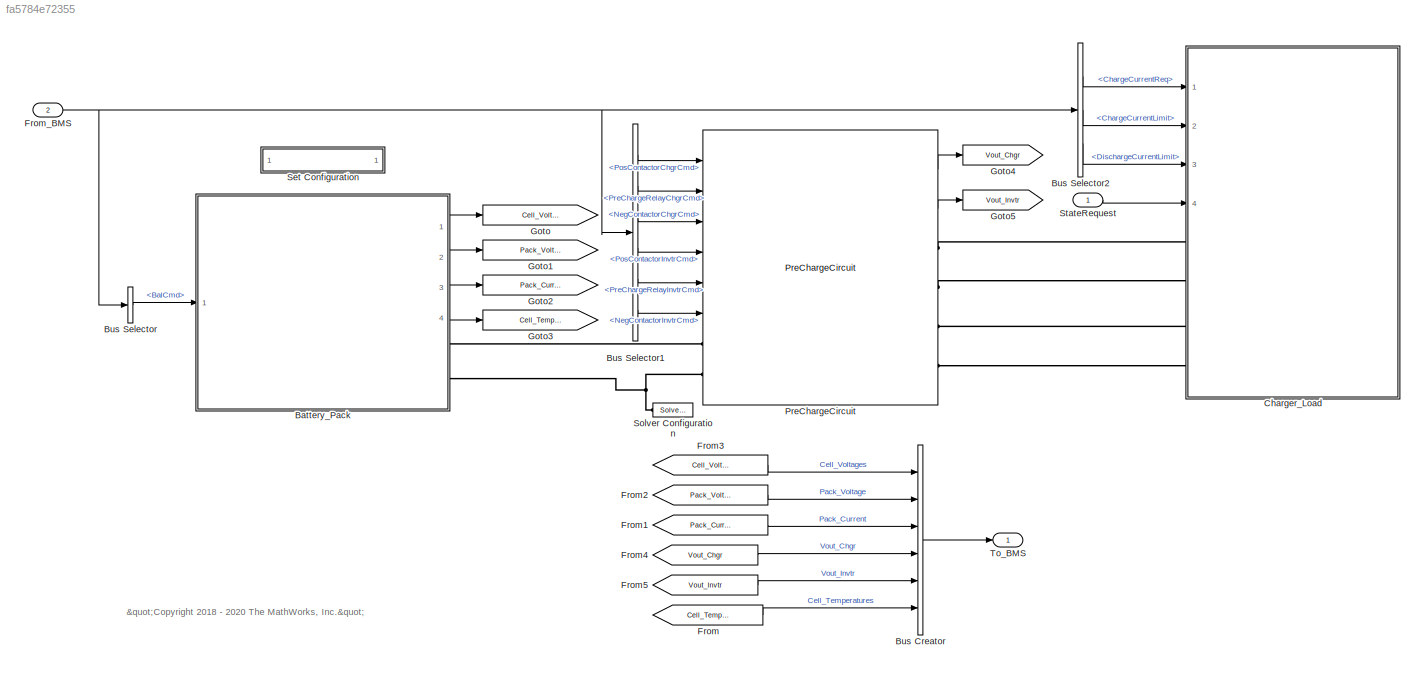
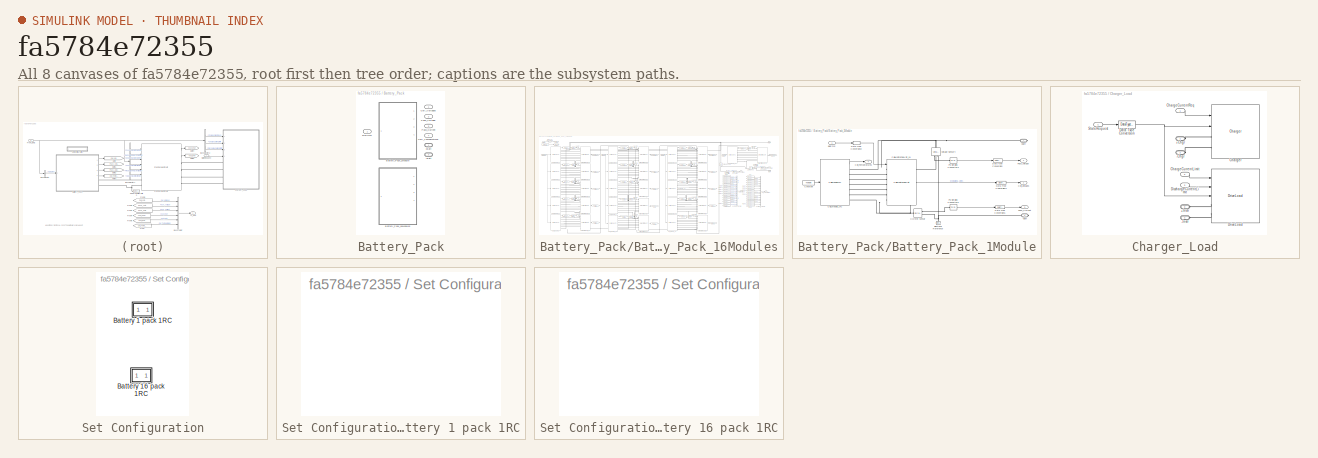
[diagram: thumbnail index - all 8 canvases of the model, root first then tree order]
MODEL slx_fa5784e72355
KIND model
BLOCK [SubSystem] Battery_Pack
  Ports = [1, 4, 0, 0, 0, 0, 2]
  RequestExecContextInheritance = off
  Variant = on
  VariantControl = Variant1
BLOCK [PMIOPort] Battery_Pack/+Batt
  Side = Right
BLOCK [PMIOPort] Battery_Pack/-Batt
  Port = 2
  Side = Right
BLOCK [Inport] Battery_Pack/BalCmd
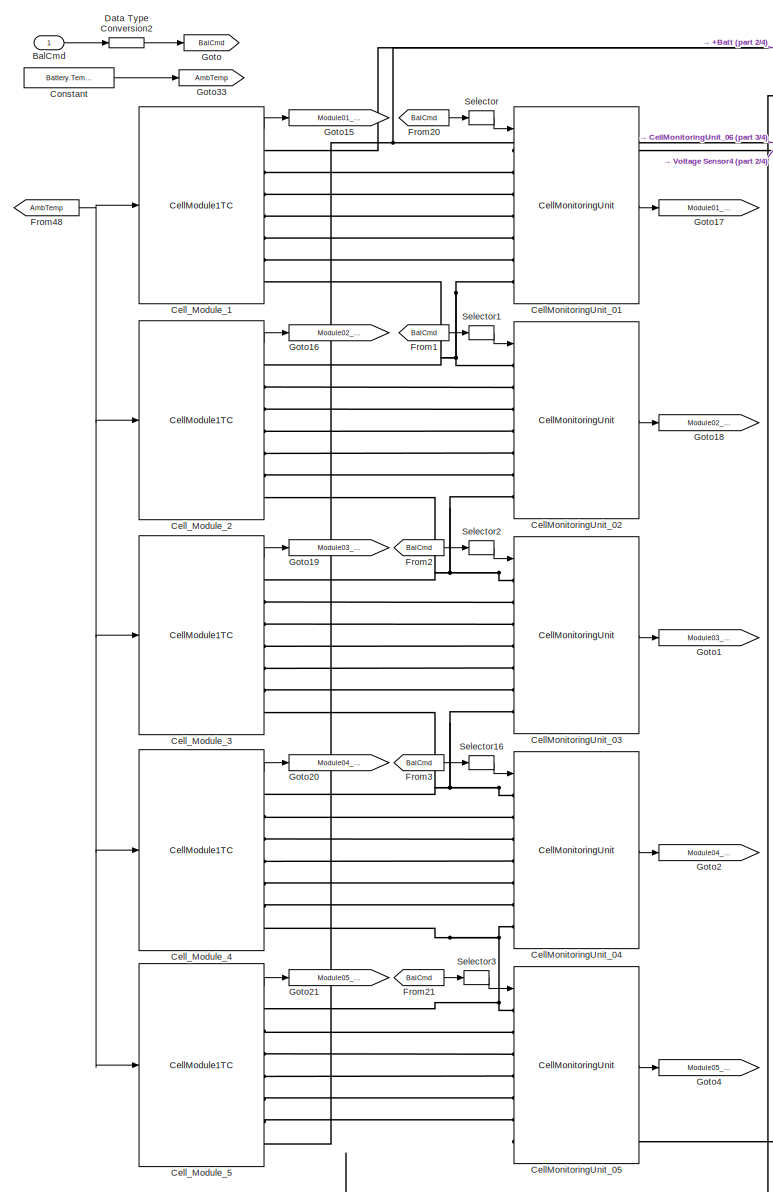
[diagram: Battery_Pack/Battery_Pack_16Modules - part 1/4, left side, full height]
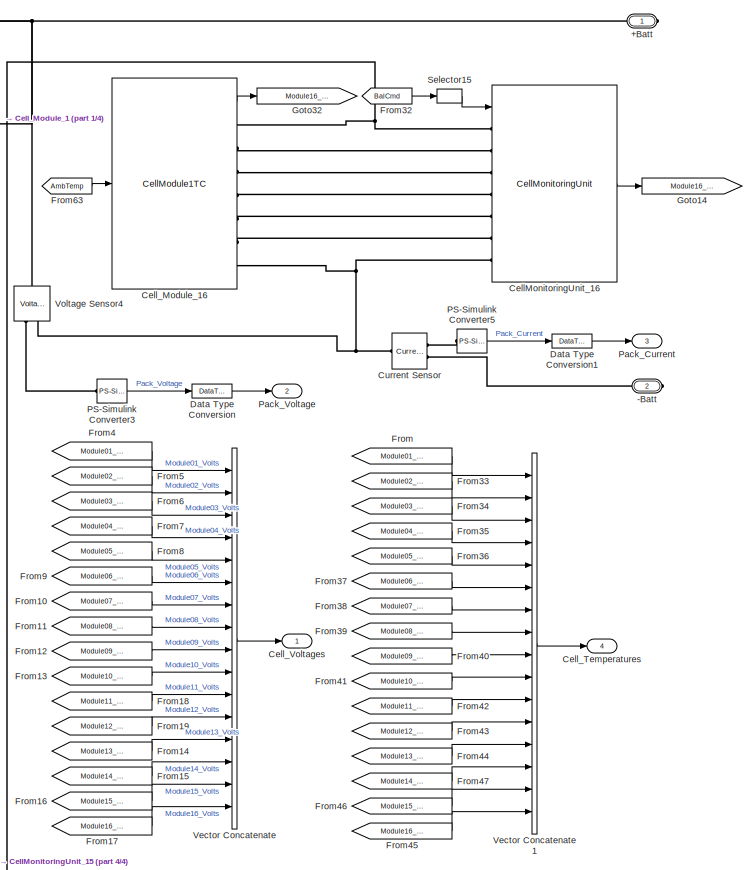
[diagram: Battery_Pack/Battery_Pack_16Modules - part 2/4, middle right region]
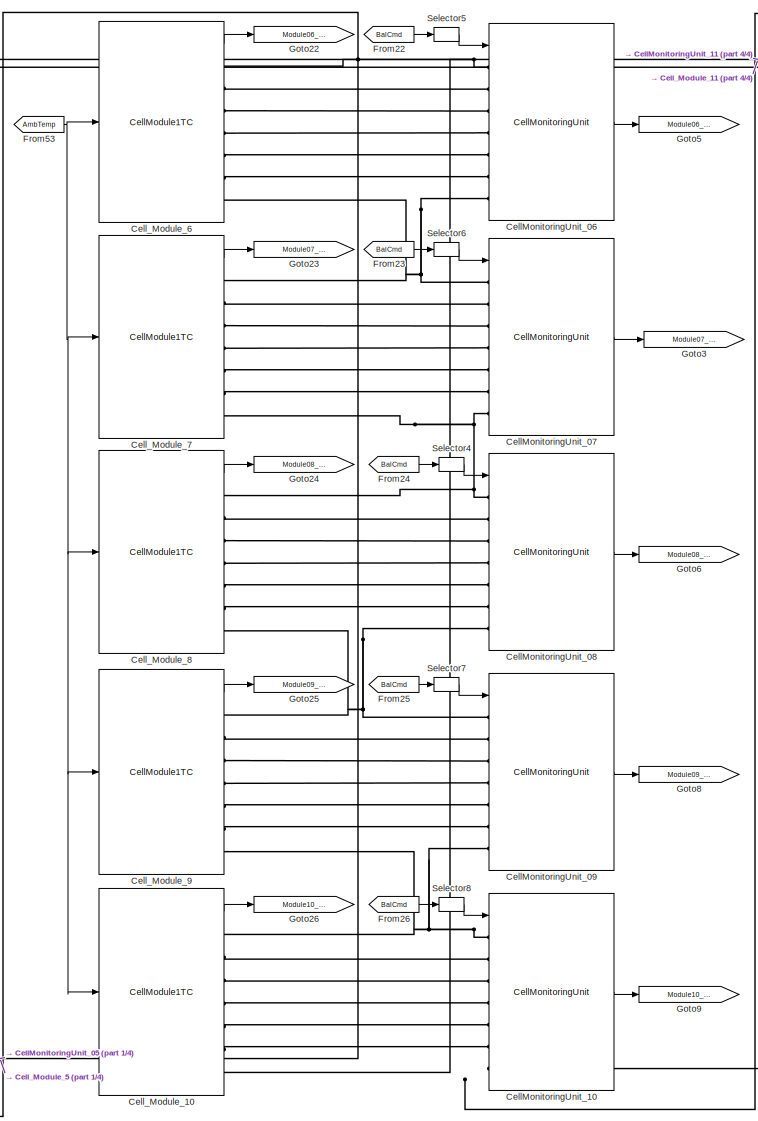
[diagram: Battery_Pack/Battery_Pack_16Modules - part 3/4, center side, full height]
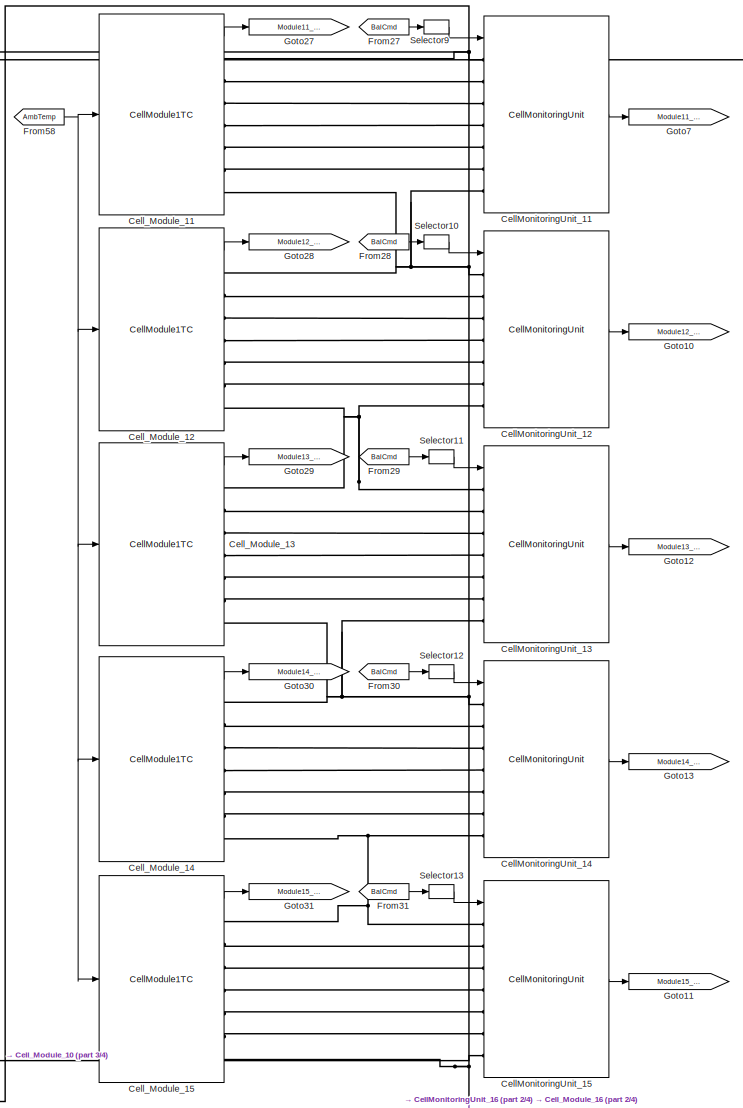
[diagram: Battery_Pack/Battery_Pack_16Modules - part 4/4, center side, full height]
BLOCK [SubSystem] Battery_Pack/Battery_Pack_16Modules
  Ports = [1, 4, 0, 0, 0, 0, 2]
  RequestExecContextInheritance = off
  VariantControl = NumModules == 16
BLOCK [PMIOPort] Battery_Pack/Battery_Pack_16Modules/+Batt
  Side = Right
BLOCK [PMIOPort] Battery_Pack/Battery_Pack_16Modules/-Batt
  Port = 2
  Side = Right
BLOCK [Inport] Battery_Pack/Battery_Pack_16Modules/BalCmd
BLOCK [Reference] Battery_Pack/Battery_Pack_16Modules/CellMonitoringUnit_01  REF=BatteryPack_lib/CellMonitoringUnit
  Ports = [1, 1, 0, 0, 0, 7]
  SourceBlock = BatteryPack_lib/CellMonitoringUnit
  SourceProductBaseCode = SS
  SourceType = SubSystem
BLOCK [Reference] Battery_Pack/Battery_Pack_16Modules/CellMonitoringUnit_02  REF=BatteryPack_lib/CellMonitoringUnit
  Ports = [1, 1, 0, 0, 0, 7]
  SourceBlock = BatteryPack_lib/CellMonitoringUnit
  SourceProductBaseCode = SS
  SourceType = SubSystem
BLOCK [Reference] Battery_Pack/Battery_Pack_16Modules/CellMonitoringUnit_03  REF=BatteryPack_lib/CellMonitoringUnit
  Ports = [1, 1, 0, 0, 0, 7]
  SourceBlock = BatteryPack_lib/CellMonitoringUnit
  SourceProductBaseCode = SS
  SourceType = SubSystem
BLOCK [Reference] Battery_Pack/Battery_Pack_16Modules/CellMonitoringUnit_04  REF=BatteryPack_lib/CellMonitoringUnit
  Ports = [1, 1, 0, 0, 0, 7]
  SourceBlock = BatteryPack_lib/CellMonitoringUnit
  SourceProductBaseCode = SS
  SourceType = SubSystem
BLOCK [Reference] Battery_Pack/Battery_Pack_16Modules/CellMonitoringUnit_05  REF=BatteryPack_lib/CellMonitoringUnit
  Ports = [1, 1, 0, 0, 0, 7]
  SourceBlock = BatteryPack_lib/CellMonitoringUnit
  SourceProductBaseCode = SS
  SourceType = SubSystem
BLOCK [Reference] Battery_Pack/Battery_Pack_16Modules/CellMonitoringUnit_06  REF=BatteryPack_lib/CellMonitoringUnit
  Ports = [1, 1, 0, 0, 0, 7]
  SourceBlock = BatteryPack_lib/CellMonitoringUnit
  SourceProductBaseCode = SS
  SourceType = SubSystem
BLOCK [Reference] Battery_Pack/Battery_Pack_16Modules/CellMonitoringUnit_07  REF=BatteryPack_lib/CellMonitoringUnit
  Ports = [1, 1, 0, 0, 0, 7]
  SourceBlock = BatteryPack_lib/CellMonitoringUnit
  SourceProductBaseCode = SS
  SourceType = SubSystem
BLOCK [Reference] Battery_Pack/Battery_Pack_16Modules/CellMonitoringUnit_08  REF=BatteryPack_lib/CellMonitoringUnit
  Ports = [1, 1, 0, 0, 0, 7]
  SourceBlock = BatteryPack_lib/CellMonitoringUnit
  SourceProductBaseCode = SS
  SourceType = SubSystem
BLOCK [Reference] Battery_Pack/Battery_Pack_16Modules/CellMonitoringUnit_09  REF=BatteryPack_lib/CellMonitoringUnit
  Ports = [1, 1, 0, 0, 0, 7]
  SourceBlock = BatteryPack_lib/CellMonitoringUnit
  SourceProductBaseCode = SS
  SourceType = SubSystem
BLOCK [Reference] Battery_Pack/Battery_Pack_16Modules/CellMonitoringUnit_10  REF=BatteryPack_lib/CellMonitoringUnit
  Ports = [1, 1, 0, 0, 0, 7]
  SourceBlock = BatteryPack_lib/CellMonitoringUnit
  SourceProductBaseCode = SS
  SourceType = SubSystem
BLOCK [Reference] Battery_Pack/Battery_Pack_16Modules/CellMonitoringUnit_11  REF=BatteryPack_lib/CellMonitoringUnit
  Ports = [1, 1, 0, 0, 0, 7]
  SourceBlock = BatteryPack_lib/CellMonitoringUnit
  SourceProductBaseCode = SS
  SourceType = SubSystem
BLOCK [Reference] Battery_Pack/Battery_Pack_16Modules/CellMonitoringUnit_12  REF=BatteryPack_lib/CellMonitoringUnit
  Ports = [1, 1, 0, 0, 0, 7]
  SourceBlock = BatteryPack_lib/CellMonitoringUnit
  SourceProductBaseCode = SS
  SourceType = SubSystem
BLOCK [Reference] Battery_Pack/Battery_Pack_16Modules/CellMonitoringUnit_13  REF=BatteryPack_lib/CellMonitoringUnit
  Ports = [1, 1, 0, 0, 0, 7]
  SourceBlock = BatteryPack_lib/CellMonitoringUnit
  SourceProductBaseCode = SS
  SourceType = SubSystem
BLOCK [Reference] Battery_Pack/Battery_Pack_16Modules/CellMonitoringUnit_14  REF=BatteryPack_lib/CellMonitoringUnit
  Ports = [1, 1, 0, 0, 0, 7]
  SourceBlock = BatteryPack_lib/CellMonitoringUnit
  SourceProductBaseCode = SS
  SourceType = SubSystem
BLOCK [Reference] Battery_Pack/Battery_Pack_16Modules/CellMonitoringUnit_15  REF=BatteryPack_lib/CellMonitoringUnit
  Ports = [1, 1, 0, 0, 0, 7]
  SourceBlock = BatteryPack_lib/CellMonitoringUnit
  SourceProductBaseCode = SS
  SourceType = SubSystem
BLOCK [Reference] Battery_Pack/Battery_Pack_16Modules/CellMonitoringUnit_16  REF=BatteryPack_lib/CellMonitoringUnit
  Ports = [1, 1, 0, 0, 0, 7]
  SourceBlock = BatteryPack_lib/CellMonitoringUnit
  SourceProductBaseCode = SS
  SourceType = SubSystem
BLOCK [Reference] Battery_Pack/Battery_Pack_16Modules/Cell_Module_1  REF=BatteryPack_lib/CellModule1TC
  Ports = [1, 1, 0, 0, 0, 0, 7]
  SourceBlock = BatteryPack_lib/CellModule1TC
  SourceProductBaseCode = SS
  SourceType = SubSystem
BLOCK [Reference] Battery_Pack/Battery_Pack_16Modules/Cell_Module_10  REF=BatteryPack_lib/CellModule1TC
  Ports = [1, 1, 0, 0, 0, 0, 7]
  SourceBlock = BatteryPack_lib/CellModule1TC
  SourceProductBaseCode = SS
  SourceType = SubSystem
BLOCK [Reference] Battery_Pack/Battery_Pack_16Modules/Cell_Module_11  REF=BatteryPack_lib/CellModule1TC
  Ports = [1, 1, 0, 0, 0, 0, 7]
  SourceBlock = BatteryPack_lib/CellModule1TC
  SourceProductBaseCode = SS
  SourceType = SubSystem
BLOCK [Reference] Battery_Pack/Battery_Pack_16Modules/Cell_Module_12  REF=BatteryPack_lib/CellModule1TC
  Ports = [1, 1, 0, 0, 0, 0, 7]
  SourceBlock = BatteryPack_lib/CellModule1TC
  SourceProductBaseCode = SS
  SourceType = SubSystem
BLOCK [Reference] Battery_Pack/Battery_Pack_16Modules/Cell_Module_13  REF=BatteryPack_lib/CellModule1TC
  Ports = [1, 1, 0, 0, 0, 0, 7]
  SourceBlock = BatteryPack_lib/CellModule1TC
  SourceProductBaseCode = SS
  SourceType = SubSystem
BLOCK [Reference] Battery_Pack/Battery_Pack_16Modules/Cell_Module_14  REF=BatteryPack_lib/CellModule1TC
  Ports = [1, 1, 0, 0, 0, 0, 7]
  SourceBlock = BatteryPack_lib/CellModule1TC
  SourceProductBaseCode = SS
  SourceType = SubSystem
BLOCK [Reference] Battery_Pack/Battery_Pack_16Modules/Cell_Module_15  REF=BatteryPack_lib/CellModule1TC
  Ports = [1, 1, 0, 0, 0, 0, 7]
  SourceBlock = BatteryPack_lib/CellModule1TC
  SourceProductBaseCode = SS
  SourceType = SubSystem
BLOCK [Reference] Battery_Pack/Battery_Pack_16Modules/Cell_Module_16  REF=BatteryPack_lib/CellModule1TC
  Ports = [1, 1, 0, 0, 0, 0, 7]
  SourceBlock = BatteryPack_lib/CellModule1TC
  SourceProductBaseCode = SS
  SourceType = SubSystem
BLOCK [Reference] Battery_Pack/Battery_Pack_16Modules/Cell_Module_2  REF=BatteryPack_lib/CellModule1TC
  Ports = [1, 1, 0, 0, 0, 0, 7]
  SourceBlock = BatteryPack_lib/CellModule1TC
  SourceProductBaseCode = SS
  SourceType = SubSystem
BLOCK [Reference] Battery_Pack/Battery_Pack_16Modules/Cell_Module_3  REF=BatteryPack_lib/CellModule1TC
  Ports = [1, 1, 0, 0, 0, 0, 7]
  SourceBlock = BatteryPack_lib/CellModule1TC
  SourceProductBaseCode = SS
  SourceType = SubSystem
BLOCK [Reference] Battery_Pack/Battery_Pack_16Modules/Cell_Module_4  REF=BatteryPack_lib/CellModule1TC
  Ports = [1, 1, 0, 0, 0, 0, 7]
  SourceBlock = BatteryPack_lib/CellModule1TC
  SourceProductBaseCode = SS
  SourceType = SubSystem
BLOCK [Reference] Battery_Pack/Battery_Pack_16Modules/Cell_Module_5  REF=BatteryPack_lib/CellModule1TC
  Ports = [1, 1, 0, 0, 0, 0, 7]
  SourceBlock = BatteryPack_lib/CellModule1TC
  SourceProductBaseCode = SS
  SourceType = SubSystem
BLOCK [Reference] Battery_Pack/Battery_Pack_16Modules/Cell_Module_6  REF=BatteryPack_lib/CellModule1TC
  Ports = [1, 1, 0, 0, 0, 0, 7]
  SourceBlock = BatteryPack_lib/CellModule1TC
  SourceProductBaseCode = SS
  SourceType = SubSystem
BLOCK [Reference] Battery_Pack/Battery_Pack_16Modules/Cell_Module_7  REF=BatteryPack_lib/CellModule1TC
  Ports = [1, 1, 0, 0, 0, 0, 7]
  SourceBlock = BatteryPack_lib/CellModule1TC
  SourceProductBaseCode = SS
  SourceType = SubSystem
BLOCK [Reference] Battery_Pack/Battery_Pack_16Modules/Cell_Module_8  REF=BatteryPack_lib/CellModule1TC
  Ports = [1, 1, 0, 0, 0, 0, 7]
  SourceBlock = BatteryPack_lib/CellModule1TC
  SourceProductBaseCode = SS
  SourceType = SubSystem
BLOCK [Reference] Battery_Pack/Battery_Pack_16Modules/Cell_Module_9  REF=BatteryPack_lib/CellModule1TC
  Ports = [1, 1, 0, 0, 0, 0, 7]
  SourceBlock = BatteryPack_lib/CellModule1TC
  SourceProductBaseCode = SS
  SourceType = SubSystem
BLOCK [Outport] Battery_Pack/Battery_Pack_16Modules/Cell_Temperatures
  Port = 4
  VectorParamsAs1DForOutWhenUnconnected = off
BLOCK [Outport] Battery_Pack/Battery_Pack_16Modules/Cell_Voltages
  VectorParamsAs1DForOutWhenUnconnected = off
BLOCK [Constant] Battery_Pack/Battery_Pack_16Modules/Constant
  SampleTime = ts
  Value = Battery.TempInit
BLOCK [Reference] Battery_Pack/Battery_Pack_16Modules/Current Sensor  REF=fl_lib/Electrical/Electrical Sensors/Current Sensor
  Ports = [0, 0, 0, 0, 0, 1, 2]
  SourceBlock = fl_lib/Electrical/Electrical Sensors/Current Sensor
  SourceProductBaseCode = SS
  SourceType = Current Sensor
BLOCK [DataTypeConversion] Battery_Pack/Battery_Pack_16Modules/Data Type Conversion
  OutDataTypeStr = single
  RndMeth = Floor
  SaturateOnIntegerOverflow = off
BLOCK [DataTypeConversion] Battery_Pack/Battery_Pack_16Modules/Data Type Conversion1
  OutDataTypeStr = single
  RndMeth = Floor
  SaturateOnIntegerOverflow = off
BLOCK [DataTypeConversion] Battery_Pack/Battery_Pack_16Modules/Data Type Conversion2
  OutDataTypeStr = double
  RndMeth = Floor
  SaturateOnIntegerOverflow = off
BLOCK [From] Battery_Pack/Battery_Pack_16Modules/From
  GotoTag = Module01_Temps
  NameLocation = top
BLOCK [From] Battery_Pack/Battery_Pack_16Modules/From1
  GotoTag = BalCmd
BLOCK [From] Battery_Pack/Battery_Pack_16Modules/From10
  GotoTag = Module07_Volts
BLOCK [From] Battery_Pack/Battery_Pack_16Modules/From11
  GotoTag = Module08_Volts
BLOCK [From] Battery_Pack/Battery_Pack_16Modules/From12
  GotoTag = Module09_Volts
BLOCK [From] Battery_Pack/Battery_Pack_16Modules/From13
  GotoTag = Module10_Volts
BLOCK [From] Battery_Pack/Battery_Pack_16Modules/From14
  GotoTag = Module13_Volts
BLOCK [From] Battery_Pack/Battery_Pack_16Modules/From15
  GotoTag = Module14_Volts
BLOCK [From] Battery_Pack/Battery_Pack_16Modules/From16
  GotoTag = Module15_Volts
BLOCK [From] Battery_Pack/Battery_Pack_16Modules/From17
  GotoTag = Module16_Volts
BLOCK [From] Battery_Pack/Battery_Pack_16Modules/From18
  GotoTag = Module11_Volts
BLOCK [From] Battery_Pack/Battery_Pack_16Modules/From19
  GotoTag = Module12_Volts
BLOCK [From] Battery_Pack/Battery_Pack_16Modules/From2
  GotoTag = BalCmd
BLOCK [From] Battery_Pack/Battery_Pack_16Modules/From20
  GotoTag = BalCmd
BLOCK [From] Battery_Pack/Battery_Pack_16Modules/From21
  GotoTag = BalCmd
BLOCK [From] Battery_Pack/Battery_Pack_16Modules/From22
  GotoTag = BalCmd
BLOCK [From] Battery_Pack/Battery_Pack_16Modules/From23
  GotoTag = BalCmd
BLOCK [From] Battery_Pack/Battery_Pack_16Modules/From24
  GotoTag = BalCmd
BLOCK [From] Battery_Pack/Battery_Pack_16Modules/From25
  GotoTag = BalCmd
BLOCK [From] Battery_Pack/Battery_Pack_16Modules/From26
  GotoTag = BalCmd
BLOCK [From] Battery_Pack/Battery_Pack_16Modules/From27
  GotoTag = BalCmd
BLOCK [From] Battery_Pack/Battery_Pack_16Modules/From28
  GotoTag = BalCmd
BLOCK [From] Battery_Pack/Battery_Pack_16Modules/From29
  GotoTag = BalCmd
BLOCK [From] Battery_Pack/Battery_Pack_16Modules/From3
  GotoTag = BalCmd
BLOCK [From] Battery_Pack/Battery_Pack_16Modules/From30
  GotoTag = BalCmd
BLOCK [From] Battery_Pack/Battery_Pack_16Modules/From31
  GotoTag = BalCmd
BLOCK [From] Battery_Pack/Battery_Pack_16Modules/From32
  GotoTag = BalCmd
BLOCK [From] Battery_Pack/Battery_Pack_16Modules/From33
  GotoTag = Module02_Temps
BLOCK [From] Battery_Pack/Battery_Pack_16Modules/From34
  GotoTag = Module03_Temps
BLOCK [From] Battery_Pack/Battery_Pack_16Modules/From35
  GotoTag = Module04_Temps
BLOCK [From] Battery_Pack/Battery_Pack_16Modules/From36
  GotoTag = Module05_Temps
BLOCK [From] Battery_Pack/Battery_Pack_16Modules/From37
  GotoTag = Module06_Temps
BLOCK [From] Battery_Pack/Battery_Pack_16Modules/From38
  GotoTag = Module07_Temps
BLOCK [From] Battery_Pack/Battery_Pack_16Modules/From39
  GotoTag = Module08_Temps
BLOCK [From] Battery_Pack/Battery_Pack_16Modules/From4
  GotoTag = Module01_Volts
BLOCK [From] Battery_Pack/Battery_Pack_16Modules/From40
  GotoTag = Module09_Temps
BLOCK [From] Battery_Pack/Battery_Pack_16Modules/From41
  GotoTag = Module10_Temps
BLOCK [From] Battery_Pack/Battery_Pack_16Modules/From42
  GotoTag = Module11_Temps
BLOCK [From] Battery_Pack/Battery_Pack_16Modules/From43
  GotoTag = Module12_Temps
BLOCK [From] Battery_Pack/Battery_Pack_16Modules/From44
  GotoTag = Module13_Temps
BLOCK [From] Battery_Pack/Battery_Pack_16Modules/From45
  GotoTag = Module16_Temps
BLOCK [From] Battery_Pack/Battery_Pack_16Modules/From46
  GotoTag = Module15_Temps
BLOCK [From] Battery_Pack/Battery_Pack_16Modules/From47
  GotoTag = Module14_Temps
BLOCK [From] Battery_Pack/Battery_Pack_16Modules/From48
  GotoTag = AmbTemp
BLOCK [From] Battery_Pack/Battery_Pack_16Modules/From5
  GotoTag = Module02_Volts
BLOCK [From] Battery_Pack/Battery_Pack_16Modules/From53
  GotoTag = AmbTemp
  NameLocation = top
BLOCK [From] Battery_Pack/Battery_Pack_16Modules/From58
  GotoTag = AmbTemp
BLOCK [From] Battery_Pack/Battery_Pack_16Modules/From6
  GotoTag = Module03_Volts
BLOCK [From] Battery_Pack/Battery_Pack_16Modules/From63
  GotoTag = AmbTemp
  NameLocation = top
BLOCK [From] Battery_Pack/Battery_Pack_16Modules/From7
  GotoTag = Module04_Volts
BLOCK [From] Battery_Pack/Battery_Pack_16Modules/From8
  GotoTag = Module05_Volts
BLOCK [From] Battery_Pack/Battery_Pack_16Modules/From9
  GotoTag = Module06_Volts
BLOCK [Goto] Battery_Pack/Battery_Pack_16Modules/Goto
  GotoTag = BalCmd
BLOCK [Goto] Battery_Pack/Battery_Pack_16Modules/Goto1
  GotoTag = Module03_Volts
BLOCK [Goto] Battery_Pack/Battery_Pack_16Modules/Goto10
  GotoTag = Module12_Volts
BLOCK [Goto] Battery_Pack/Battery_Pack_16Modules/Goto11
  GotoTag = Module15_Volts
BLOCK [Goto] Battery_Pack/Battery_Pack_16Modules/Goto12
  GotoTag = Module13_Volts
BLOCK [Goto] Battery_Pack/Battery_Pack_16Modules/Goto13
  GotoTag = Module14_Volts
BLOCK [Goto] Battery_Pack/Battery_Pack_16Modules/Goto14
  GotoTag = Module16_Volts
BLOCK [Goto] Battery_Pack/Battery_Pack_16Modules/Goto15
  GotoTag = Module01_Temps
BLOCK [Goto] Battery_Pack/Battery_Pack_16Modules/Goto16
  GotoTag = Module02_Temps
  NameLocation = top
BLOCK [Goto] Battery_Pack/Battery_Pack_16Modules/Goto17
  GotoTag = Module01_Volts
BLOCK [Goto] Battery_Pack/Battery_Pack_16Modules/Goto18
  GotoTag = Module02_Volts
BLOCK [Goto] Battery_Pack/Battery_Pack_16Modules/Goto19
  GotoTag = Module03_Temps
  NameLocation = top
BLOCK [Goto] Battery_Pack/Battery_Pack_16Modules/Goto2
  GotoTag = Module04_Volts
BLOCK [Goto] Battery_Pack/Battery_Pack_16Modules/Goto20
  GotoTag = Module04_Temps
  NameLocation = top
BLOCK [Goto] Battery_Pack/Battery_Pack_16Modules/Goto21
  GotoTag = Module05_Temps
  NameLocation = top
BLOCK [Goto] Battery_Pack/Battery_Pack_16Modules/Goto22
  GotoTag = Module06_Temps
  NameLocation = top
BLOCK [Goto] Battery_Pack/Battery_Pack_16Modules/Goto23
  GotoTag = Module07_Temps
  NameLocation = top
BLOCK [Goto] Battery_Pack/Battery_Pack_16Modules/Goto24
  GotoTag = Module08_Temps
  NameLocation = top
BLOCK [Goto] Battery_Pack/Battery_Pack_16Modules/Goto25
  GotoTag = Module09_Temps
  NameLocation = top
BLOCK [Goto] Battery_Pack/Battery_Pack_16Modules/Goto26
  GotoTag = Module10_Temps
  NameLocation = top
BLOCK [Goto] Battery_Pack/Battery_Pack_16Modules/Goto27
  GotoTag = Module11_Temps
  NameLocation = top
BLOCK [Goto] Battery_Pack/Battery_Pack_16Modules/Goto28
  GotoTag = Module12_Temps
  NameLocation = top
BLOCK [Goto] Battery_Pack/Battery_Pack_16Modules/Goto29
  GotoTag = Module13_Temps
  NameLocation = top
BLOCK [Goto] Battery_Pack/Battery_Pack_16Modules/Goto3
  GotoTag = Module07_Volts
BLOCK [Goto] Battery_Pack/Battery_Pack_16Modules/Goto30
  GotoTag = Module14_Temps
  NameLocation = top
BLOCK [Goto] Battery_Pack/Battery_Pack_16Modules/Goto31
  GotoTag = Module15_Temps
  NameLocation = top
BLOCK [Goto] Battery_Pack/Battery_Pack_16Modules/Goto32
  GotoTag = Module16_Temps
BLOCK [Goto] Battery_Pack/Battery_Pack_16Modules/Goto33
  GotoTag = AmbTemp
BLOCK [Goto] Battery_Pack/Battery_Pack_16Modules/Goto4
  GotoTag = Module05_Volts
BLOCK [Goto] Battery_Pack/Battery_Pack_16Modules/Goto5
  GotoTag = Module06_Volts
BLOCK [Goto] Battery_Pack/Battery_Pack_16Modules/Goto6
  GotoTag = Module08_Volts
BLOCK [Goto] Battery_Pack/Battery_Pack_16Modules/Goto7
  GotoTag = Module11_Volts
BLOCK [Goto] Battery_Pack/Battery_Pack_16Modules/Goto8
  GotoTag = Module09_Volts
BLOCK [Goto] Battery_Pack/Battery_Pack_16Modules/Goto9
  GotoTag = Module10_Volts
BLOCK [Reference] Battery_Pack/Battery_Pack_16Modules/PS-Simulink Converter3  REF=nesl_utility/PS-Simulink
Converter
  Ports = [0, 1, 0, 0, 0, 1]
  SourceBlock = nesl_utility/PS-Simulink\nConverter
  SourceProductBaseCode = PW,SS
  SourceType = PS-Simulink\nConverter
BLOCK [Reference] Battery_Pack/Battery_Pack_16Modules/PS-Simulink Converter5  REF=nesl_utility/PS-Simulink
Converter
  Ports = [0, 1, 0, 0, 0, 1]
  SourceBlock = nesl_utility/PS-Simulink\nConverter
  SourceProductBaseCode = PW,SS
  SourceType = PS-Simulink\nConverter
BLOCK [Outport] Battery_Pack/Battery_Pack_16Modules/Pack_Current
  Port = 3
  VectorParamsAs1DForOutWhenUnconnected = off
BLOCK [Outport] Battery_Pack/Battery_Pack_16Modules/Pack_Voltage
  Port = 2
  VectorParamsAs1DForOutWhenUnconnected = off
BLOCK [Selector] Battery_Pack/Battery_Pack_16Modules/Selector
  IndexOptions = Starting index (dialog)
  Indices = [1]
  InputPortWidth = 96
  OutputSizes = 6
  Ports = [1, 1]
BLOCK [Selector] Battery_Pack/Battery_Pack_16Modules/Selector1
  IndexOptions = Starting index (dialog)
  Indices = 7
  InputPortWidth = 96
  OutputSizes = 6
  Ports = [1, 1]
BLOCK [Selector] Battery_Pack/Battery_Pack_16Modules/Selector10
  IndexOptions = Starting index (dialog)
  Indices = 67
  InputPortWidth = 96
  OutputSizes = 6
  Ports = [1, 1]
BLOCK [Selector] Battery_Pack/Battery_Pack_16Modules/Selector11
  IndexOptions = Starting index (dialog)
  Indices = 73
  InputPortWidth = 96
  OutputSizes = 6
  Ports = [1, 1]
BLOCK [Selector] Battery_Pack/Battery_Pack_16Modules/Selector12
  IndexOptions = Starting index (dialog)
  Indices = 79
  InputPortWidth = 96
  OutputSizes = 6
  Ports = [1, 1]
BLOCK [Selector] Battery_Pack/Battery_Pack_16Modules/Selector13
  IndexOptions = Starting index (dialog)
  Indices = 85
  InputPortWidth = 96
  OutputSizes = 6
  Ports = [1, 1]
BLOCK [Selector] Battery_Pack/Battery_Pack_16Modules/Selector15
  IndexOptions = Starting index (dialog)
  Indices = 16
  InputPortWidth = 96
  OutputSizes = 6
  Ports = [1, 1]
BLOCK [Selector] Battery_Pack/Battery_Pack_16Modules/Selector16
  IndexOptions = Starting index (dialog)
  Indices = 19
  InputPortWidth = 96
  OutputSizes = 6
  Ports = [1, 1]
BLOCK [Selector] Battery_Pack/Battery_Pack_16Modules/Selector2
  IndexOptions = Starting index (dialog)
  Indices = 13
  InputPortWidth = 96
  OutputSizes = 6
  Ports = [1, 1]
BLOCK [Selector] Battery_Pack/Battery_Pack_16Modules/Selector3
  IndexOptions = Starting index (dialog)
  Indices = 25
  InputPortWidth = 96
  OutputSizes = 6
  Ports = [1, 1]
BLOCK [Selector] Battery_Pack/Battery_Pack_16Modules/Selector4
  IndexOptions = Starting index (dialog)
  Indices = 43
  InputPortWidth = 96
  OutputSizes = 6
  Ports = [1, 1]
BLOCK [Selector] Battery_Pack/Battery_Pack_16Modules/Selector5
  IndexOptions = Starting index (dialog)
  Indices = 31
  InputPortWidth = 96
  OutputSizes = 6
  Ports = [1, 1]
BLOCK [Selector] Battery_Pack/Battery_Pack_16Modules/Selector6
  IndexOptions = Starting index (dialog)
  Indices = 37
  InputPortWidth = 96
  OutputSizes = 6
  Ports = [1, 1]
BLOCK [Selector] Battery_Pack/Battery_Pack_16Modules/Selector7
  IndexOptions = Starting index (dialog)
  Indices = 49
  InputPortWidth = 96
  OutputSizes = 6
  Ports = [1, 1]
BLOCK [Selector] Battery_Pack/Battery_Pack_16Modules/Selector8
  IndexOptions = Starting index (dialog)
  Indices = 55
  InputPortWidth = 96
  OutputSizes = 6
  Ports = [1, 1]
BLOCK [Selector] Battery_Pack/Battery_Pack_16Modules/Selector9
  IndexOptions = Starting index (dialog)
  Indices = 61
  InputPortWidth = 96
  OutputSizes = 6
  Ports = [1, 1]
BLOCK [Concatenate] Battery_Pack/Battery_Pack_16Modules/Vector Concatenate
  NumInputs = 16
  Ports = [16, 1]
BLOCK [Concatenate] Battery_Pack/Battery_Pack_16Modules/Vector Concatenate1
  NumInputs = 16
  Ports = [16, 1]
BLOCK [Reference] Battery_Pack/Battery_Pack_16Modules/Voltage Sensor4  REF=fl_lib/Electrical/Electrical Sensors/Voltage Sensor
  NameLocation = right
  Ports = [0, 0, 0, 0, 0, 1, 2]
  SourceBlock = fl_lib/Electrical/Electrical Sensors/Voltage Sensor
  SourceProductBaseCode = SS
  SourceType = Voltage Sensor
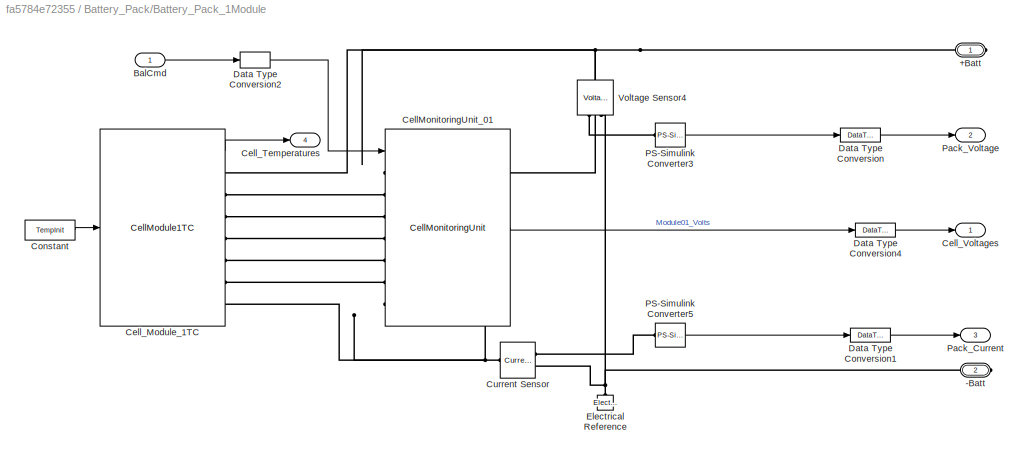
BLOCK [SubSystem] Battery_Pack/Battery_Pack_1Module
  Ports = [1, 4, 0, 0, 0, 0, 2]
  RequestExecContextInheritance = off
  VariantControl = NumModules == 1
BLOCK [PMIOPort] Battery_Pack/Battery_Pack_1Module/+Batt
  Side = Right
BLOCK [PMIOPort] Battery_Pack/Battery_Pack_1Module/-Batt
  Port = 2
  Side = Right
BLOCK [Inport] Battery_Pack/Battery_Pack_1Module/BalCmd
BLOCK [Reference] Battery_Pack/Battery_Pack_1Module/CellMonitoringUnit_01  REF=BatteryPack_lib/CellMonitoringUnit
  Ports = [1, 1, 0, 0, 0, 7]
  SourceBlock = BatteryPack_lib/CellMonitoringUnit
  SourceProductBaseCode = SS
  SourceType = SubSystem
BLOCK [Reference] Battery_Pack/Battery_Pack_1Module/Cell_Module_1TC  REF=BatteryPack_lib/CellModule1TC
  Ports = [1, 1, 0, 0, 0, 0, 7]
  SourceBlock = BatteryPack_lib/CellModule1TC
  SourceProductBaseCode = SS
  SourceType = SubSystem
BLOCK [Outport] Battery_Pack/Battery_Pack_1Module/Cell_Temperatures
  Port = 4
  VectorParamsAs1DForOutWhenUnconnected = off
BLOCK [Outport] Battery_Pack/Battery_Pack_1Module/Cell_Voltages
  VectorParamsAs1DForOutWhenUnconnected = off
BLOCK [Constant] Battery_Pack/Battery_Pack_1Module/Constant
  SampleTime = ts
  Value = TempInit
BLOCK [Reference] Battery_Pack/Battery_Pack_1Module/Current Sensor  REF=fl_lib/Electrical/Electrical Sensors/Current Sensor
  Ports = [0, 0, 0, 0, 0, 1, 2]
  SourceBlock = fl_lib/Electrical/Electrical Sensors/Current Sensor
  SourceProductBaseCode = SS
  SourceType = Current Sensor
BLOCK [DataTypeConversion] Battery_Pack/Battery_Pack_1Module/Data Type Conversion
  OutDataTypeStr = single
  RndMeth = Floor
  SaturateOnIntegerOverflow = off
BLOCK [DataTypeConversion] Battery_Pack/Battery_Pack_1Module/Data Type Conversion1
  OutDataTypeStr = single
  RndMeth = Floor
  SaturateOnIntegerOverflow = off
BLOCK [DataTypeConversion] Battery_Pack/Battery_Pack_1Module/Data Type Conversion2
  OutDataTypeStr = double
  RndMeth = Floor
  SaturateOnIntegerOverflow = off
BLOCK [DataTypeConversion] Battery_Pack/Battery_Pack_1Module/Data Type Conversion4
  OutDataTypeStr = single
  RndMeth = Floor
  SaturateOnIntegerOverflow = off
BLOCK [Reference] Battery_Pack/Battery_Pack_1Module/Electrical Reference  REF=fl_lib/Electrical/Electrical Elements/Electrical Reference
  NameLocation = right
  Ports = [0, 0, 0, 0, 0, 1]
  SourceBlock = fl_lib/Electrical/Electrical Elements/Electrical Reference
  SourceProductBaseCode = SS
  SourceType = Electrical Reference
BLOCK [Reference] Battery_Pack/Battery_Pack_1Module/PS-Simulink Converter3  REF=nesl_utility/PS-Simulink
Converter
  Ports = [0, 1, 0, 0, 0, 1]
  SourceBlock = nesl_utility/PS-Simulink\nConverter
  SourceProductBaseCode = PW,SS
  SourceType = PS-Simulink\nConverter
BLOCK [Reference] Battery_Pack/Battery_Pack_1Module/PS-Simulink Converter5  REF=nesl_utility/PS-Simulink
Converter
  Ports = [0, 1, 0, 0, 0, 1]
  SourceBlock = nesl_utility/PS-Simulink\nConverter
  SourceProductBaseCode = PW,SS
  SourceType = PS-Simulink\nConverter
BLOCK [Outport] Battery_Pack/Battery_Pack_1Module/Pack_Current
  Port = 3
  VectorParamsAs1DForOutWhenUnconnected = off
BLOCK [Outport] Battery_Pack/Battery_Pack_1Module/Pack_Voltage
  Port = 2
  VectorParamsAs1DForOutWhenUnconnected = off
BLOCK [Reference] Battery_Pack/Battery_Pack_1Module/Voltage Sensor4  REF=fl_lib/Electrical/Electrical Sensors/Voltage Sensor
  NameLocation = right
  Ports = [0, 0, 0, 0, 0, 1, 2]
  SourceBlock = fl_lib/Electrical/Electrical Sensors/Voltage Sensor
  SourceProductBaseCode = SS
  SourceType = Voltage Sensor
BLOCK [Outport] Battery_Pack/Cell_Temperatures
  Port = 4
  VectorParamsAs1DForOutWhenUnconnected = off
BLOCK [Outport] Battery_Pack/Cell_Voltages
  VectorParamsAs1DForOutWhenUnconnected = off
BLOCK [Outport] Battery_Pack/Pack_Current
  Port = 3
  VectorParamsAs1DForOutWhenUnconnected = off
BLOCK [Outport] Battery_Pack/Pack_Voltage
  Port = 2
  VectorParamsAs1DForOutWhenUnconnected = off
BLOCK [BusCreator] Bus Creator
  DisplayOption = bar
  InheritFromInputs = on
  Inputs = 6
  NonVirtualBus = on
  OutDataTypeStr = Bus: BMS_Input
  Ports = [6, 1]
BLOCK [BusSelector] Bus Selector
  OutputSignals = BalCmd
  Ports = [1, 1]
BLOCK [BusSelector] Bus Selector1
  OutputSignals = PosContactorChgrCmd,PreChargeRelayChgrCmd,NegContactorChgrCmd,PosContactorInvtrCmd,PreChargeRelayInvtrCmd,NegContactorInvtrCmd
  Ports = [1, 6]
BLOCK [BusSelector] Bus Selector2
  OutputSignals = ChargeCurrentReq,ChargeCurrentLimit,DischargeCurrentLimit
  Ports = [1, 3]
BLOCK [SubSystem] Charger_Load
  Ports = [4, 0, 0, 0, 0, 4]
  RequestExecContextInheritance = off
BLOCK [PMIOPort] Charger_Load/+Chgr
  Side = Left
BLOCK [PMIOPort] Charger_Load/+Invtr
  Port = 3
  Side = Left
BLOCK [PMIOPort] Charger_Load/-Chgr
  Port = 2
  Side = Left
BLOCK [PMIOPort] Charger_Load/-Invtr
  Port = 4
  Side = Left
BLOCK [Inport] Charger_Load/ChargeCurrentLimit
  Port = 2
BLOCK [Inport] Charger_Load/ChargeCurrentReq
BLOCK [Reference] Charger_Load/Charger  REF=BatteryPack_lib/Charger
  Ports = [2, 0, 0, 0, 0, 2]
  SourceBlock = BatteryPack_lib/Charger
  SourceProductBaseCode = SS
BLOCK [DataTypeConversion] Charger_Load/Data Type Conversion
  OutDataTypeStr = int8
  RndMeth = Floor
  SaturateOnIntegerOverflow = off
BLOCK [Inport] Charger_Load/DischargeCurrentLimit
  Port = 3
BLOCK [Reference] Charger_Load/DriveLoad  REF=BatteryPack_lib/DriveLoad
  Ports = [3, 0, 0, 0, 0, 2]
  SourceBlock = BatteryPack_lib/DriveLoad
  SourceProductBaseCode = SS
BLOCK [Inport] Charger_Load/StateRequest
  Port = 4
BLOCK [From] From
  GotoTag = Cell_Temperatures
BLOCK [From] From1
  GotoTag = Pack_Current
BLOCK [From] From2
  GotoTag = Pack_Voltage
BLOCK [From] From3
  GotoTag = Cell_Voltages
BLOCK [From] From4
  GotoTag = Vout_Chgr
BLOCK [From] From5
  GotoTag = Vout_Invtr
BLOCK [Inport] From_BMS
  OutDataTypeStr = Bus: BMS_Output
  Port = 2
BLOCK [Goto] Goto
  GotoTag = Cell_Voltages
BLOCK [Goto] Goto1
  GotoTag = Pack_Voltage
BLOCK [Goto] Goto2
  GotoTag = Pack_Current
BLOCK [Goto] Goto3
  GotoTag = Cell_Temperatures
BLOCK [Goto] Goto4
  GotoTag = Vout_Chgr
BLOCK [Goto] Goto5
  GotoTag = Vout_Invtr
BLOCK [Reference] PreChargeCircuit  REF=BatteryPack_lib/PreChargeCircuit
  Ports = [6, 2, 0, 0, 0, 2, 4]
  SourceBlock = BatteryPack_lib/PreChargeCircuit
  SourceProductBaseCode = SS
BLOCK [SubSystem] Set Configuration
  Ports = []
  RequestExecContextInheritance = off
BLOCK [SubSystem] Set Configuration/Battery 1 pack 1RC
  OpenFcn = SharedDictionaryObj = Simulink.data.dictionary.open('Shared_DD.sldd');\ntry removeDataSource(SharedDictionaryObj,'Battery_1Pack_1RC.sldd')\nend\ntry removeDataSource(SharedDictionaryObj,'Battery_16Packs_1RC.sldd')\nend\naddDataSource(SharedDictionaryObj,'Battery_1Pack_1RC.sldd')
  Ports = []
  RequestExecContextInheritance = off
BLOCK [SubSystem] Set Configuration/Battery 16 pack 1RC
  OpenFcn = SharedDictionaryObj = Simulink.data.dictionary.open('Shared_DD.sldd');\ntry removeDataSource(SharedDictionaryObj,'Battery_1Pack_1RC.sldd')\nend\ntry removeDataSource(SharedDictionaryObj,'Battery_16Packs_1RC.sldd')\nend\naddDataSource(SharedDictionaryObj,'Battery_16Packs_1RC.sldd')
  Ports = []
  RequestExecContextInheritance = off
BLOCK [Reference] Solver Configuration  REF=nesl_utility/Solver
Configuration
  Ports = [0, 0, 0, 0, 0, 0, 1]
  SourceBlock = nesl_utility/Solver\nConfiguration
  SourceProductBaseCode = PW,SS
  SourceType = Solver\nConfiguration
BLOCK [Inport] StateRequest
  Interpolate = off
  OutDataTypeStr = Enum: SRE
  SampleTime = [ts,0]
BLOCK [Outport] To_BMS
  OutDataTypeStr = Bus: BMS_Input
  VectorParamsAs1DForOutWhenUnconnected = off
ANNOTATION (root): "<copyright redacted>
LINE Battery_Pack/Battery_Pack_16Modules/BalCmd:1 -> Battery_Pack/Battery_Pack_16Modules/Data Type Conversion2:1
LINE Battery_Pack/Battery_Pack_16Modules/CellMonitoringUnit_01:1 -> Battery_Pack/Battery_Pack_16Modules/Goto17:1
LINE Battery_Pack/Battery_Pack_16Modules/CellMonitoringUnit_02:1 -> Battery_Pack/Battery_Pack_16Modules/Goto18:1
LINE Battery_Pack/Battery_Pack_16Modules/CellMonitoringUnit_03:1 -> Battery_Pack/Battery_Pack_16Modules/Goto1:1
LINE Battery_Pack/Battery_Pack_16Modules/CellMonitoringUnit_04:1 -> Battery_Pack/Battery_Pack_16Modules/Goto2:1
LINE Battery_Pack/Battery_Pack_16Modules/CellMonitoringUnit_05:1 -> Battery_Pack/Battery_Pack_16Modules/Goto4:1
LINE Battery_Pack/Battery_Pack_16Modules/CellMonitoringUnit_06:1 -> Battery_Pack/Battery_Pack_16Modules/Goto5:1
LINE Battery_Pack/Battery_Pack_16Modules/CellMonitoringUnit_07:1 -> Battery_Pack/Battery_Pack_16Modules/Goto3:1
LINE Battery_Pack/Battery_Pack_16Modules/CellMonitoringUnit_08:1 -> Battery_Pack/Battery_Pack_16Modules/Goto6:1
LINE Battery_Pack/Battery_Pack_16Modules/CellMonitoringUnit_09:1 -> Battery_Pack/Battery_Pack_16Modules/Goto8:1
LINE Battery_Pack/Battery_Pack_16Modules/CellMonitoringUnit_10:1 -> Battery_Pack/Battery_Pack_16Modules/Goto9:1
LINE Battery_Pack/Battery_Pack_16Modules/CellMonitoringUnit_11:1 -> Battery_Pack/Battery_Pack_16Modules/Goto7:1
LINE Battery_Pack/Battery_Pack_16Modules/CellMonitoringUnit_12:1 -> Battery_Pack/Battery_Pack_16Modules/Goto10:1
LINE Battery_Pack/Battery_Pack_16Modules/CellMonitoringUnit_13:1 -> Battery_Pack/Battery_Pack_16Modules/Goto12:1
LINE Battery_Pack/Battery_Pack_16Modules/CellMonitoringUnit_14:1 -> Battery_Pack/Battery_Pack_16Modules/Goto13:1
LINE Battery_Pack/Battery_Pack_16Modules/CellMonitoringUnit_15:1 -> Battery_Pack/Battery_Pack_16Modules/Goto11:1
LINE Battery_Pack/Battery_Pack_16Modules/CellMonitoringUnit_16:1 -> Battery_Pack/Battery_Pack_16Modules/Goto14:1
LINE Battery_Pack/Battery_Pack_16Modules/Cell_Module_10:1 -> Battery_Pack/Battery_Pack_16Modules/Goto26:1
LINE Battery_Pack/Battery_Pack_16Modules/Cell_Module_11:1 -> Battery_Pack/Battery_Pack_16Modules/Goto27:1
LINE Battery_Pack/Battery_Pack_16Modules/Cell_Module_12:1 -> Battery_Pack/Battery_Pack_16Modules/Goto28:1
LINE Battery_Pack/Battery_Pack_16Modules/Cell_Module_13:1 -> Battery_Pack/Battery_Pack_16Modules/Goto29:1
LINE Battery_Pack/Battery_Pack_16Modules/Cell_Module_14:1 -> Battery_Pack/Battery_Pack_16Modules/Goto30:1
LINE Battery_Pack/Battery_Pack_16Modules/Cell_Module_15:1 -> Battery_Pack/Battery_Pack_16Modules/Goto31:1
LINE Battery_Pack/Battery_Pack_16Modules/Cell_Module_16:1 -> Battery_Pack/Battery_Pack_16Modules/Goto32:1
LINE Battery_Pack/Battery_Pack_16Modules/Cell_Module_1:1 -> Battery_Pack/Battery_Pack_16Modules/Goto15:1
LINE Battery_Pack/Battery_Pack_16Modules/Cell_Module_2:1 -> Battery_Pack/Battery_Pack_16Modules/Goto16:1
LINE Battery_Pack/Battery_Pack_16Modules/Cell_Module_3:1 -> Battery_Pack/Battery_Pack_16Modules/Goto19:1
LINE Battery_Pack/Battery_Pack_16Modules/Cell_Module_4:1 -> Battery_Pack/Battery_Pack_16Modules/Goto20:1
LINE Battery_Pack/Battery_Pack_16Modules/Cell_Module_5:1 -> Battery_Pack/Battery_Pack_16Modules/Goto21:1
LINE Battery_Pack/Battery_Pack_16Modules/Cell_Module_6:1 -> Battery_Pack/Battery_Pack_16Modules/Goto22:1
LINE Battery_Pack/Battery_Pack_16Modules/Cell_Module_7:1 -> Battery_Pack/Battery_Pack_16Modules/Goto23:1
LINE Battery_Pack/Battery_Pack_16Modules/Cell_Module_8:1 -> Battery_Pack/Battery_Pack_16Modules/Goto24:1
LINE Battery_Pack/Battery_Pack_16Modules/Cell_Module_9:1 -> Battery_Pack/Battery_Pack_16Modules/Goto25:1
LINE Battery_Pack/Battery_Pack_16Modules/Constant:1 -> Battery_Pack/Battery_Pack_16Modules/Goto33:1
LINE Battery_Pack/Battery_Pack_16Modules/Data Type Conversion1:1 -> Battery_Pack/Battery_Pack_16Modules/Pack_Current:1
LINE Battery_Pack/Battery_Pack_16Modules/Data Type Conversion2:1 -> Battery_Pack/Battery_Pack_16Modules/Goto:1
LINE Battery_Pack/Battery_Pack_16Modules/Data Type Conversion:1 -> Battery_Pack/Battery_Pack_16Modules/Pack_Voltage:1
LINE Battery_Pack/Battery_Pack_16Modules/From10:1 -> Battery_Pack/Battery_Pack_16Modules/Vector Concatenate:7
LINE Battery_Pack/Battery_Pack_16Modules/From11:1 -> Battery_Pack/Battery_Pack_16Modules/Vector Concatenate:8
LINE Battery_Pack/Battery_Pack_16Modules/From12:1 -> Battery_Pack/Battery_Pack_16Modules/Vector Concatenate:9
LINE Battery_Pack/Battery_Pack_16Modules/From13:1 -> Battery_Pack/Battery_Pack_16Modules/Vector Concatenate:10
LINE Battery_Pack/Battery_Pack_16Modules/From14:1 -> Battery_Pack/Battery_Pack_16Modules/Vector Concatenate:13
LINE Battery_Pack/Battery_Pack_16Modules/From15:1 -> Battery_Pack/Battery_Pack_16Modules/Vector Concatenate:14
LINE Battery_Pack/Battery_Pack_16Modules/From16:1 -> Battery_Pack/Battery_Pack_16Modules/Vector Concatenate:15
LINE Battery_Pack/Battery_Pack_16Modules/From17:1 -> Battery_Pack/Battery_Pack_16Modules/Vector Concatenate:16
LINE Battery_Pack/Battery_Pack_16Modules/From18:1 -> Battery_Pack/Battery_Pack_16Modules/Vector Concatenate:11
LINE Battery_Pack/Battery_Pack_16Modules/From19:1 -> Battery_Pack/Battery_Pack_16Modules/Vector Concatenate:12
LINE Battery_Pack/Battery_Pack_16Modules/From1:1 -> Battery_Pack/Battery_Pack_16Modules/Selector1:1
LINE Battery_Pack/Battery_Pack_16Modules/From20:1 -> Battery_Pack/Battery_Pack_16Modules/Selector:1
LINE Battery_Pack/Battery_Pack_16Modules/From21:1 -> Battery_Pack/Battery_Pack_16Modules/Selector3:1
LINE Battery_Pack/Battery_Pack_16Modules/From22:1 -> Battery_Pack/Battery_Pack_16Modules/Selector5:1
LINE Battery_Pack/Battery_Pack_16Modules/From23:1 -> Battery_Pack/Battery_Pack_16Modules/Selector6:1
LINE Battery_Pack/Battery_Pack_16Modules/From24:1 -> Battery_Pack/Battery_Pack_16Modules/Selector4:1
LINE Battery_Pack/Battery_Pack_16Modules/From25:1 -> Battery_Pack/Battery_Pack_16Modules/Selector7:1
LINE Battery_Pack/Battery_Pack_16Modules/From26:1 -> Battery_Pack/Battery_Pack_16Modules/Selector8:1
LINE Battery_Pack/Battery_Pack_16Modules/From27:1 -> Battery_Pack/Battery_Pack_16Modules/Selector9:1
LINE Battery_Pack/Battery_Pack_16Modules/From28:1 -> Battery_Pack/Battery_Pack_16Modules/Selector10:1
LINE Battery_Pack/Battery_Pack_16Modules/From29:1 -> Battery_Pack/Battery_Pack_16Modules/Selector11:1
LINE Battery_Pack/Battery_Pack_16Modules/From2:1 -> Battery_Pack/Battery_Pack_16Modules/Selector2:1
LINE Battery_Pack/Battery_Pack_16Modules/From30:1 -> Battery_Pack/Battery_Pack_16Modules/Selector12:1
LINE Battery_Pack/Battery_Pack_16Modules/From31:1 -> Battery_Pack/Battery_Pack_16Modules/Selector13:1
LINE Battery_Pack/Battery_Pack_16Modules/From32:1 -> Battery_Pack/Battery_Pack_16Modules/Selector15:1
LINE Battery_Pack/Battery_Pack_16Modules/From33:1 -> Battery_Pack/Battery_Pack_16Modules/Vector Concatenate1:2
LINE Battery_Pack/Battery_Pack_16Modules/From34:1 -> Battery_Pack/Battery_Pack_16Modules/Vector Concatenate1:3
LINE Battery_Pack/Battery_Pack_16Modules/From35:1 -> Battery_Pack/Battery_Pack_16Modules/Vector Concatenate1:4
LINE Battery_Pack/Battery_Pack_16Modules/From36:1 -> Battery_Pack/Battery_Pack_16Modules/Vector Concatenate1:5
LINE Battery_Pack/Battery_Pack_16Modules/From37:1 -> Battery_Pack/Battery_Pack_16Modules/Vector Concatenate1:6
LINE Battery_Pack/Battery_Pack_16Modules/From38:1 -> Battery_Pack/Battery_Pack_16Modules/Vector Concatenate1:7
LINE Battery_Pack/Battery_Pack_16Modules/From39:1 -> Battery_Pack/Battery_Pack_16Modules/Vector Concatenate1:8
LINE Battery_Pack/Battery_Pack_16Modules/From3:1 -> Battery_Pack/Battery_Pack_16Modules/Selector16:1
LINE Battery_Pack/Battery_Pack_16Modules/From40:1 -> Battery_Pack/Battery_Pack_16Modules/Vector Concatenate1:9
LINE Battery_Pack/Battery_Pack_16Modules/From41:1 -> Battery_Pack/Battery_Pack_16Modules/Vector Concatenate1:10
LINE Battery_Pack/Battery_Pack_16Modules/From42:1 -> Battery_Pack/Battery_Pack_16Modules/Vector Concatenate1:11
LINE Battery_Pack/Battery_Pack_16Modules/From43:1 -> Battery_Pack/Battery_Pack_16Modules/Vector Concatenate1:12
LINE Battery_Pack/Battery_Pack_16Modules/From44:1 -> Battery_Pack/Battery_Pack_16Modules/Vector Concatenate1:13
LINE Battery_Pack/Battery_Pack_16Modules/From45:1 -> Battery_Pack/Battery_Pack_16Modules/Vector Concatenate1:16
LINE Battery_Pack/Battery_Pack_16Modules/From46:1 -> Battery_Pack/Battery_Pack_16Modules/Vector Concatenate1:15
LINE Battery_Pack/Battery_Pack_16Modules/From47:1 -> Battery_Pack/Battery_Pack_16Modules/Vector Concatenate1:14
NET Battery_Pack/Battery_Pack_16Modules/From48:1 -> Battery_Pack/Battery_Pack_16Modules/Cell_Module_1:1, Battery_Pack/Battery_Pack_16Modules/Cell_Module_2:1, Battery_Pack/Battery_Pack_16Modules/Cell_Module_3:1, Battery_Pack/Battery_Pack_16Modules/Cell_Module_4:1, Battery_Pack/Battery_Pack_16Modules/Cell_Module_5:1
LINE Battery_Pack/Battery_Pack_16Modules/From4:1 -> Battery_Pack/Battery_Pack_16Modules/Vector Concatenate:1
NET Battery_Pack/Battery_Pack_16Modules/From53:1 -> Battery_Pack/Battery_Pack_16Modules/Cell_Module_10:1, Battery_Pack/Battery_Pack_16Modules/Cell_Module_6:1, Battery_Pack/Battery_Pack_16Modules/Cell_Module_7:1, Battery_Pack/Battery_Pack_16Modules/Cell_Module_8:1, Battery_Pack/Battery_Pack_16Modules/Cell_Module_9:1
NET Battery_Pack/Battery_Pack_16Modules/From58:1 -> Battery_Pack/Battery_Pack_16Modules/Cell_Module_11:1, Battery_Pack/Battery_Pack_16Modules/Cell_Module_12:1, Battery_Pack/Battery_Pack_16Modules/Cell_Module_13:1, Battery_Pack/Battery_Pack_16Modules/Cell_Module_14:1, Battery_Pack/Battery_Pack_16Modules/Cell_Module_15:1
LINE Battery_Pack/Battery_Pack_16Modules/From5:1 -> Battery_Pack/Battery_Pack_16Modules/Vector Concatenate:2
LINE Battery_Pack/Battery_Pack_16Modules/From63:1 -> Battery_Pack/Battery_Pack_16Modules/Cell_Module_16:1
LINE Battery_Pack/Battery_Pack_16Modules/From6:1 -> Battery_Pack/Battery_Pack_16Modules/Vector Concatenate:3
LINE Battery_Pack/Battery_Pack_16Modules/From7:1 -> Battery_Pack/Battery_Pack_16Modules/Vector Concatenate:4
LINE Battery_Pack/Battery_Pack_16Modules/From8:1 -> Battery_Pack/Battery_Pack_16Modules/Vector Concatenate:5
LINE Battery_Pack/Battery_Pack_16Modules/From9:1 -> Battery_Pack/Battery_Pack_16Modules/Vector Concatenate:6
LINE Battery_Pack/Battery_Pack_16Modules/From:1 -> Battery_Pack/Battery_Pack_16Modules/Vector Concatenate1:1
LINE Battery_Pack/Battery_Pack_16Modules/PS-Simulink Converter3:1 -> Battery_Pack/Battery_Pack_16Modules/Data Type Conversion:1
LINE Battery_Pack/Battery_Pack_16Modules/PS-Simulink Converter5:1 -> Battery_Pack/Battery_Pack_16Modules/Data Type Conversion1:1
LINE Battery_Pack/Battery_Pack_16Modules/Selector10:1 -> Battery_Pack/Battery_Pack_16Modules/CellMonitoringUnit_12:1
LINE Battery_Pack/Battery_Pack_16Modules/Selector11:1 -> Battery_Pack/Battery_Pack_16Modules/CellMonitoringUnit_13:1
LINE Battery_Pack/Battery_Pack_16Modules/Selector12:1 -> Battery_Pack/Battery_Pack_16Modules/CellMonitoringUnit_14:1
LINE Battery_Pack/Battery_Pack_16Modules/Selector13:1 -> Battery_Pack/Battery_Pack_16Modules/CellMonitoringUnit_15:1
LINE Battery_Pack/Battery_Pack_16Modules/Selector15:1 -> Battery_Pack/Battery_Pack_16Modules/CellMonitoringUnit_16:1
LINE Battery_Pack/Battery_Pack_16Modules/Selector16:1 -> Battery_Pack/Battery_Pack_16Modules/CellMonitoringUnit_04:1
LINE Battery_Pack/Battery_Pack_16Modules/Selector1:1 -> Battery_Pack/Battery_Pack_16Modules/CellMonitoringUnit_02:1
LINE Battery_Pack/Battery_Pack_16Modules/Selector2:1 -> Battery_Pack/Battery_Pack_16Modules/CellMonitoringUnit_03:1
LINE Battery_Pack/Battery_Pack_16Modules/Selector3:1 -> Battery_Pack/Battery_Pack_16Modules/CellMonitoringUnit_05:1
LINE Battery_Pack/Battery_Pack_16Modules/Selector4:1 -> Battery_Pack/Battery_Pack_16Modules/CellMonitoringUnit_08:1
LINE Battery_Pack/Battery_Pack_16Modules/Selector5:1 -> Battery_Pack/Battery_Pack_16Modules/CellMonitoringUnit_06:1
LINE Battery_Pack/Battery_Pack_16Modules/Selector6:1 -> Battery_Pack/Battery_Pack_16Modules/CellMonitoringUnit_07:1
LINE Battery_Pack/Battery_Pack_16Modules/Selector7:1 -> Battery_Pack/Battery_Pack_16Modules/CellMonitoringUnit_09:1
LINE Battery_Pack/Battery_Pack_16Modules/Selector8:1 -> Battery_Pack/Battery_Pack_16Modules/CellMonitoringUnit_10:1
LINE Battery_Pack/Battery_Pack_16Modules/Selector9:1 -> Battery_Pack/Battery_Pack_16Modules/CellMonitoringUnit_11:1
LINE Battery_Pack/Battery_Pack_16Modules/Selector:1 -> Battery_Pack/Battery_Pack_16Modules/CellMonitoringUnit_01:1
LINE Battery_Pack/Battery_Pack_16Modules/Vector Concatenate1:1 -> Battery_Pack/Battery_Pack_16Modules/Cell_Temperatures:1
LINE Battery_Pack/Battery_Pack_16Modules/Vector Concatenate:1 -> Battery_Pack/Battery_Pack_16Modules/Cell_Voltages:1
LINE Battery_Pack/Battery_Pack_1Module/BalCmd:1 -> Battery_Pack/Battery_Pack_1Module/Data Type Conversion2:1
LINE Battery_Pack/Battery_Pack_1Module/CellMonitoringUnit_01:1 -> Battery_Pack/Battery_Pack_1Module/Data Type Conversion4:1
LINE Battery_Pack/Battery_Pack_1Module/Cell_Module_1TC:1 -> Battery_Pack/Battery_Pack_1Module/Cell_Temperatures:1
LINE Battery_Pack/Battery_Pack_1Module/Constant:1 -> Battery_Pack/Battery_Pack_1Module/Cell_Module_1TC:1
LINE Battery_Pack/Battery_Pack_1Module/Data Type Conversion1:1 -> Battery_Pack/Battery_Pack_1Module/Pack_Current:1
LINE Battery_Pack/Battery_Pack_1Module/Data Type Conversion2:1 -> Battery_Pack/Battery_Pack_1Module/CellMonitoringUnit_01:1
LINE Battery_Pack/Battery_Pack_1Module/Data Type Conversion4:1 -> Battery_Pack/Battery_Pack_1Module/Cell_Voltages:1
LINE Battery_Pack/Battery_Pack_1Module/Data Type Conversion:1 -> Battery_Pack/Battery_Pack_1Module/Pack_Voltage:1
LINE Battery_Pack/Battery_Pack_1Module/PS-Simulink Converter3:1 -> Battery_Pack/Battery_Pack_1Module/Data Type Conversion:1
LINE Battery_Pack/Battery_Pack_1Module/PS-Simulink Converter5:1 -> Battery_Pack/Battery_Pack_1Module/Data Type Conversion1:1
LINE Battery_Pack:1 -> Goto:1
LINE Battery_Pack:2 -> Goto1:1
LINE Battery_Pack:3 -> Goto2:1
LINE Battery_Pack:4 -> Goto3:1
LINE Bus Creator:1 -> To_BMS:1
LINE Bus Selector1:1 -> PreChargeCircuit:1
LINE Bus Selector1:2 -> PreChargeCircuit:2
LINE Bus Selector1:3 -> PreChargeCircuit:3
LINE Bus Selector1:4 -> PreChargeCircuit:4
LINE Bus Selector1:5 -> PreChargeCircuit:5
LINE Bus Selector1:6 -> PreChargeCircuit:6
LINE Bus Selector2:1 -> Charger_Load:1
LINE Bus Selector2:2 -> Charger_Load:2
LINE Bus Selector2:3 -> Charger_Load:3
LINE Bus Selector:1 -> Battery_Pack:1
LINE Charger_Load/ChargeCurrentLimit:1 -> Charger_Load/DriveLoad:1
LINE Charger_Load/ChargeCurrentReq:1 -> Charger_Load/Charger:1
NET Charger_Load/Data Type Conversion:1 -> Charger_Load/Charger:2, Charger_Load/DriveLoad:3
LINE Charger_Load/DischargeCurrentLimit:1 -> Charger_Load/DriveLoad:2
LINE Charger_Load/StateRequest:1 -> Charger_Load/Data Type Conversion:1
LINE From1:1 -> Bus Creator:3
LINE From2:1 -> Bus Creator:2
LINE From3:1 -> Bus Creator:1
LINE From4:1 -> Bus Creator:4
LINE From5:1 -> Bus Creator:5
LINE From:1 -> Bus Creator:6
NET From_BMS:1 -> Bus Selector1:1, Bus Selector2:1, Bus Selector:1
LINE PreChargeCircuit:1 -> Goto4:1
LINE PreChargeCircuit:2 -> Goto5:1
LINE StateRequest:1 -> Charger_Load:4
PNET net1: Battery_Pack/Battery_Pack_16Modules/+Batt:RConn1 -- Battery_Pack/Battery_Pack_16Modules/CellMonitoringUnit_01:LConn1 -- Battery_Pack/Battery_Pack_16Modules/Cell_Module_1:RConn1 -- Battery_Pack/Battery_Pack_16Modules/Voltage Sensor4:LConn1
PLINE Battery_Pack/Battery_Pack_16Modules/-Batt:RConn1 -- Battery_Pack/Battery_Pack_16Modules/Current Sensor:RConn2
PLINE Battery_Pack/Battery_Pack_16Modules/CellMonitoringUnit_01:LConn2 -- Battery_Pack/Battery_Pack_16Modules/Cell_Module_1:RConn2
PLINE Battery_Pack/Battery_Pack_16Modules/CellMonitoringUnit_01:LConn3 -- Battery_Pack/Battery_Pack_16Modules/Cell_Module_1:RConn3
PLINE Battery_Pack/Battery_Pack_16Modules/CellMonitoringUnit_01:LConn4 -- Battery_Pack/Battery_Pack_16Modules/Cell_Module_1:RConn4
PLINE Battery_Pack/Battery_Pack_16Modules/CellMonitoringUnit_01:LConn5 -- Battery_Pack/Battery_Pack_16Modules/Cell_Module_1:RConn5
PLINE Battery_Pack/Battery_Pack_16Modules/CellMonitoringUnit_01:LConn6 -- Battery_Pack/Battery_Pack_16Modules/Cell_Module_1:RConn6
PNET net2: Battery_Pack/Battery_Pack_16Modules/CellMonitoringUnit_01:LConn7 -- Battery_Pack/Battery_Pack_16Modules/CellMonitoringUnit_02:LConn1 -- Battery_Pack/Battery_Pack_16Modules/Cell_Module_1:RConn7 -- Battery_Pack/Battery_Pack_16Modules/Cell_Module_2:RConn1
PLINE Battery_Pack/Battery_Pack_16Modules/CellMonitoringUnit_02:LConn2 -- Battery_Pack/Battery_Pack_16Modules/Cell_Module_2:RConn2
PLINE Battery_Pack/Battery_Pack_16Modules/CellMonitoringUnit_02:LConn3 -- Battery_Pack/Battery_Pack_16Modules/Cell_Module_2:RConn3
PLINE Battery_Pack/Battery_Pack_16Modules/CellMonitoringUnit_02:LConn4 -- Battery_Pack/Battery_Pack_16Modules/Cell_Module_2:RConn4
PLINE Battery_Pack/Battery_Pack_16Modules/CellMonitoringUnit_02:LConn5 -- Battery_Pack/Battery_Pack_16Modules/Cell_Module_2:RConn5
PLINE Battery_Pack/Battery_Pack_16Modules/CellMonitoringUnit_02:LConn6 -- Battery_Pack/Battery_Pack_16Modules/Cell_Module_2:RConn6
PNET net3: Battery_Pack/Battery_Pack_16Modules/CellMonitoringUnit_02:LConn7 -- Battery_Pack/Battery_Pack_16Modules/CellMonitoringUnit_03:LConn1 -- Battery_Pack/Battery_Pack_16Modules/Cell_Module_2:RConn7 -- Battery_Pack/Battery_Pack_16Modules/Cell_Module_3:RConn1
PLINE Battery_Pack/Battery_Pack_16Modules/CellMonitoringUnit_03:LConn2 -- Battery_Pack/Battery_Pack_16Modules/Cell_Module_3:RConn2
PLINE Battery_Pack/Battery_Pack_16Modules/CellMonitoringUnit_03:LConn3 -- Battery_Pack/Battery_Pack_16Modules/Cell_Module_3:RConn3
PLINE Battery_Pack/Battery_Pack_16Modules/CellMonitoringUnit_03:LConn4 -- Battery_Pack/Battery_Pack_16Modules/Cell_Module_3:RConn4
PLINE Battery_Pack/Battery_Pack_16Modules/CellMonitoringUnit_03:LConn5 -- Battery_Pack/Battery_Pack_16Modules/Cell_Module_3:RConn5
PLINE Battery_Pack/Battery_Pack_16Modules/CellMonitoringUnit_03:LConn6 -- Battery_Pack/Battery_Pack_16Modules/Cell_Module_3:RConn6
PNET net4: Battery_Pack/Battery_Pack_16Modules/CellMonitoringUnit_03:LConn7 -- Battery_Pack/Battery_Pack_16Modules/CellMonitoringUnit_04:LConn1 -- Battery_Pack/Battery_Pack_16Modules/Cell_Module_3:RConn7 -- Battery_Pack/Battery_Pack_16Modules/Cell_Module_4:RConn1
PLINE Battery_Pack/Battery_Pack_16Modules/CellMonitoringUnit_04:LConn2 -- Battery_Pack/Battery_Pack_16Modules/Cell_Module_4:RConn2
PLINE Battery_Pack/Battery_Pack_16Modules/CellMonitoringUnit_04:LConn3 -- Battery_Pack/Battery_Pack_16Modules/Cell_Module_4:RConn3
PLINE Battery_Pack/Battery_Pack_16Modules/CellMonitoringUnit_04:LConn4 -- Battery_Pack/Battery_Pack_16Modules/Cell_Module_4:RConn4
PLINE Battery_Pack/Battery_Pack_16Modules/CellMonitoringUnit_04:LConn5 -- Battery_Pack/Battery_Pack_16Modules/Cell_Module_4:RConn5
PLINE Battery_Pack/Battery_Pack_16Modules/CellMonitoringUnit_04:LConn6 -- Battery_Pack/Battery_Pack_16Modules/Cell_Module_4:RConn6
PNET net5: Battery_Pack/Battery_Pack_16Modules/CellMonitoringUnit_04:LConn7 -- Battery_Pack/Battery_Pack_16Modules/CellMonitoringUnit_05:LConn1 -- Battery_Pack/Battery_Pack_16Modules/Cell_Module_4:RConn7 -- Battery_Pack/Battery_Pack_16Modules/Cell_Module_5:RConn1
PLINE Battery_Pack/Battery_Pack_16Modules/CellMonitoringUnit_05:LConn2 -- Battery_Pack/Battery_Pack_16Modules/Cell_Module_5:RConn2
PLINE Battery_Pack/Battery_Pack_16Modules/CellMonitoringUnit_05:LConn3 -- Battery_Pack/Battery_Pack_16Modules/Cell_Module_5:RConn3
PLINE Battery_Pack/Battery_Pack_16Modules/CellMonitoringUnit_05:LConn4 -- Battery_Pack/Battery_Pack_16Modules/Cell_Module_5:RConn4
PLINE Battery_Pack/Battery_Pack_16Modules/CellMonitoringUnit_05:LConn5 -- Battery_Pack/Battery_Pack_16Modules/Cell_Module_5:RConn5
PLINE Battery_Pack/Battery_Pack_16Modules/CellMonitoringUnit_05:LConn6 -- Battery_Pack/Battery_Pack_16Modules/Cell_Module_5:RConn6
PNET net6: Battery_Pack/Battery_Pack_16Modules/CellMonitoringUnit_05:LConn7 -- Battery_Pack/Battery_Pack_16Modules/CellMonitoringUnit_06:LConn1 -- Battery_Pack/Battery_Pack_16Modules/Cell_Module_5:RConn7 -- Battery_Pack/Battery_Pack_16Modules/Cell_Module_6:RConn1
PLINE Battery_Pack/Battery_Pack_16Modules/CellMonitoringUnit_06:LConn2 -- Battery_Pack/Battery_Pack_16Modules/Cell_Module_6:RConn2
PLINE Battery_Pack/Battery_Pack_16Modules/CellMonitoringUnit_06:LConn3 -- Battery_Pack/Battery_Pack_16Modules/Cell_Module_6:RConn3
PLINE Battery_Pack/Battery_Pack_16Modules/CellMonitoringUnit_06:LConn4 -- Battery_Pack/Battery_Pack_16Modules/Cell_Module_6:RConn4
PLINE Battery_Pack/Battery_Pack_16Modules/CellMonitoringUnit_06:LConn5 -- Battery_Pack/Battery_Pack_16Modules/Cell_Module_6:RConn5
PLINE Battery_Pack/Battery_Pack_16Modules/CellMonitoringUnit_06:LConn6 -- Battery_Pack/Battery_Pack_16Modules/Cell_Module_6:RConn6
PNET net7: Battery_Pack/Battery_Pack_16Modules/CellMonitoringUnit_06:LConn7 -- Battery_Pack/Battery_Pack_16Modules/CellMonitoringUnit_07:LConn1 -- Battery_Pack/Battery_Pack_16Modules/Cell_Module_6:RConn7 -- Battery_Pack/Battery_Pack_16Modules/Cell_Module_7:RConn1
PLINE Battery_Pack/Battery_Pack_16Modules/CellMonitoringUnit_07:LConn2 -- Battery_Pack/Battery_Pack_16Modules/Cell_Module_7:RConn2
PLINE Battery_Pack/Battery_Pack_16Modules/CellMonitoringUnit_07:LConn3 -- Battery_Pack/Battery_Pack_16Modules/Cell_Module_7:RConn3
PLINE Battery_Pack/Battery_Pack_16Modules/CellMonitoringUnit_07:LConn4 -- Battery_Pack/Battery_Pack_16Modules/Cell_Module_7:RConn4
PLINE Battery_Pack/Battery_Pack_16Modules/CellMonitoringUnit_07:LConn5 -- Battery_Pack/Battery_Pack_16Modules/Cell_Module_7:RConn5
PLINE Battery_Pack/Battery_Pack_16Modules/CellMonitoringUnit_07:LConn6 -- Battery_Pack/Battery_Pack_16Modules/Cell_Module_7:RConn6
PNET net8: Battery_Pack/Battery_Pack_16Modules/CellMonitoringUnit_07:LConn7 -- Battery_Pack/Battery_Pack_16Modules/CellMonitoringUnit_08:LConn1 -- Battery_Pack/Battery_Pack_16Modules/Cell_Module_7:RConn7 -- Battery_Pack/Battery_Pack_16Modules/Cell_Module_8:RConn1
PLINE Battery_Pack/Battery_Pack_16Modules/CellMonitoringUnit_08:LConn2 -- Battery_Pack/Battery_Pack_16Modules/Cell_Module_8:RConn2
PLINE Battery_Pack/Battery_Pack_16Modules/CellMonitoringUnit_08:LConn3 -- Battery_Pack/Battery_Pack_16Modules/Cell_Module_8:RConn3
PLINE Battery_Pack/Battery_Pack_16Modules/CellMonitoringUnit_08:LConn4 -- Battery_Pack/Battery_Pack_16Modules/Cell_Module_8:RConn4
PLINE Battery_Pack/Battery_Pack_16Modules/CellMonitoringUnit_08:LConn5 -- Battery_Pack/Battery_Pack_16Modules/Cell_Module_8:RConn5
PLINE Battery_Pack/Battery_Pack_16Modules/CellMonitoringUnit_08:LConn6 -- Battery_Pack/Battery_Pack_16Modules/Cell_Module_8:RConn6
PNET net9: Battery_Pack/Battery_Pack_16Modules/CellMonitoringUnit_08:LConn7 -- Battery_Pack/Battery_Pack_16Modules/CellMonitoringUnit_09:LConn1 -- Battery_Pack/Battery_Pack_16Modules/Cell_Module_8:RConn7 -- Battery_Pack/Battery_Pack_16Modules/Cell_Module_9:RConn1
PLINE Battery_Pack/Battery_Pack_16Modules/CellMonitoringUnit_09:LConn2 -- Battery_Pack/Battery_Pack_16Modules/Cell_Module_9:RConn2
PLINE Battery_Pack/Battery_Pack_16Modules/CellMonitoringUnit_09:LConn3 -- Battery_Pack/Battery_Pack_16Modules/Cell_Module_9:RConn3
PLINE Battery_Pack/Battery_Pack_16Modules/CellMonitoringUnit_09:LConn4 -- Battery_Pack/Battery_Pack_16Modules/Cell_Module_9:RConn4
PLINE Battery_Pack/Battery_Pack_16Modules/CellMonitoringUnit_09:LConn5 -- Battery_Pack/Battery_Pack_16Modules/Cell_Module_9:RConn5
PLINE Battery_Pack/Battery_Pack_16Modules/CellMonitoringUnit_09:LConn6 -- Battery_Pack/Battery_Pack_16Modules/Cell_Module_9:RConn6
PNET net10: Battery_Pack/Battery_Pack_16Modules/CellMonitoringUnit_09:LConn7 -- Battery_Pack/Battery_Pack_16Modules/CellMonitoringUnit_10:LConn1 -- Battery_Pack/Battery_Pack_16Modules/Cell_Module_10:RConn1 -- Battery_Pack/Battery_Pack_16Modules/Cell_Module_9:RConn7
PLINE Battery_Pack/Battery_Pack_16Modules/CellMonitoringUnit_10:LConn2 -- Battery_Pack/Battery_Pack_16Modules/Cell_Module_10:RConn2
PLINE Battery_Pack/Battery_Pack_16Modules/CellMonitoringUnit_10:LConn3 -- Battery_Pack/Battery_Pack_16Modules/Cell_Module_10:RConn3
PLINE Battery_Pack/Battery_Pack_16Modules/CellMonitoringUnit_10:LConn4 -- Battery_Pack/Battery_Pack_16Modules/Cell_Module_10:RConn4
PLINE Battery_Pack/Battery_Pack_16Modules/CellMonitoringUnit_10:LConn5 -- Battery_Pack/Battery_Pack_16Modules/Cell_Module_10:RConn5
PLINE Battery_Pack/Battery_Pack_16Modules/CellMonitoringUnit_10:LConn6 -- Battery_Pack/Battery_Pack_16Modules/Cell_Module_10:RConn6
PNET net11: Battery_Pack/Battery_Pack_16Modules/CellMonitoringUnit_10:LConn7 -- Battery_Pack/Battery_Pack_16Modules/CellMonitoringUnit_11:LConn1 -- Battery_Pack/Battery_Pack_16Modules/Cell_Module_10:RConn7 -- Battery_Pack/Battery_Pack_16Modules/Cell_Module_11:RConn1
PLINE Battery_Pack/Battery_Pack_16Modules/CellMonitoringUnit_11:LConn2 -- Battery_Pack/Battery_Pack_16Modules/Cell_Module_11:RConn2
PLINE Battery_Pack/Battery_Pack_16Modules/CellMonitoringUnit_11:LConn3 -- Battery_Pack/Battery_Pack_16Modules/Cell_Module_11:RConn3
PLINE Battery_Pack/Battery_Pack_16Modules/CellMonitoringUnit_11:LConn4 -- Battery_Pack/Battery_Pack_16Modules/Cell_Module_11:RConn4
PLINE Battery_Pack/Battery_Pack_16Modules/CellMonitoringUnit_11:LConn5 -- Battery_Pack/Battery_Pack_16Modules/Cell_Module_11:RConn5
PLINE Battery_Pack/Battery_Pack_16Modules/CellMonitoringUnit_11:LConn6 -- Battery_Pack/Battery_Pack_16Modules/Cell_Module_11:RConn6
PNET net12: Battery_Pack/Battery_Pack_16Modules/CellMonitoringUnit_11:LConn7 -- Battery_Pack/Battery_Pack_16Modules/CellMonitoringUnit_12:LConn1 -- Battery_Pack/Battery_Pack_16Modules/Cell_Module_11:RConn7 -- Battery_Pack/Battery_Pack_16Modules/Cell_Module_12:RConn1
PLINE Battery_Pack/Battery_Pack_16Modules/CellMonitoringUnit_12:LConn2 -- Battery_Pack/Battery_Pack_16Modules/Cell_Module_12:RConn2
PLINE Battery_Pack/Battery_Pack_16Modules/CellMonitoringUnit_12:LConn3 -- Battery_Pack/Battery_Pack_16Modules/Cell_Module_12:RConn3
PLINE Battery_Pack/Battery_Pack_16Modules/CellMonitoringUnit_12:LConn4 -- Battery_Pack/Battery_Pack_16Modules/Cell_Module_12:RConn4
PLINE Battery_Pack/Battery_Pack_16Modules/CellMonitoringUnit_12:LConn5 -- Battery_Pack/Battery_Pack_16Modules/Cell_Module_12:RConn5
PLINE Battery_Pack/Battery_Pack_16Modules/CellMonitoringUnit_12:LConn6 -- Battery_Pack/Battery_Pack_16Modules/Cell_Module_12:RConn6
PNET net13: Battery_Pack/Battery_Pack_16Modules/CellMonitoringUnit_12:LConn7 -- Battery_Pack/Battery_Pack_16Modules/CellMonitoringUnit_13:LConn1 -- Battery_Pack/Battery_Pack_16Modules/Cell_Module_12:RConn7 -- Battery_Pack/Battery_Pack_16Modules/Cell_Module_13:RConn1
PLINE Battery_Pack/Battery_Pack_16Modules/CellMonitoringUnit_13:LConn2 -- Battery_Pack/Battery_Pack_16Modules/Cell_Module_13:RConn2
PLINE Battery_Pack/Battery_Pack_16Modules/CellMonitoringUnit_13:LConn3 -- Battery_Pack/Battery_Pack_16Modules/Cell_Module_13:RConn3
PLINE Battery_Pack/Battery_Pack_16Modules/CellMonitoringUnit_13:LConn4 -- Battery_Pack/Battery_Pack_16Modules/Cell_Module_13:RConn4
PLINE Battery_Pack/Battery_Pack_16Modules/CellMonitoringUnit_13:LConn5 -- Battery_Pack/Battery_Pack_16Modules/Cell_Module_13:RConn5
PLINE Battery_Pack/Battery_Pack_16Modules/CellMonitoringUnit_13:LConn6 -- Battery_Pack/Battery_Pack_16Modules/Cell_Module_13:RConn6
PNET net14: Battery_Pack/Battery_Pack_16Modules/CellMonitoringUnit_13:LConn7 -- Battery_Pack/Battery_Pack_16Modules/CellMonitoringUnit_14:LConn1 -- Battery_Pack/Battery_Pack_16Modules/Cell_Module_13:RConn7 -- Battery_Pack/Battery_Pack_16Modules/Cell_Module_14:RConn1
PLINE Battery_Pack/Battery_Pack_16Modules/CellMonitoringUnit_14:LConn2 -- Battery_Pack/Battery_Pack_16Modules/Cell_Module_14:RConn2
PLINE Battery_Pack/Battery_Pack_16Modules/CellMonitoringUnit_14:LConn3 -- Battery_Pack/Battery_Pack_16Modules/Cell_Module_14:RConn3
PLINE Battery_Pack/Battery_Pack_16Modules/CellMonitoringUnit_14:LConn4 -- Battery_Pack/Battery_Pack_16Modules/Cell_Module_14:RConn4
PLINE Battery_Pack/Battery_Pack_16Modules/CellMonitoringUnit_14:LConn5 -- Battery_Pack/Battery_Pack_16Modules/Cell_Module_14:RConn5
PLINE Battery_Pack/Battery_Pack_16Modules/CellMonitoringUnit_14:LConn6 -- Battery_Pack/Battery_Pack_16Modules/Cell_Module_14:RConn6
PNET net15: Battery_Pack/Battery_Pack_16Modules/CellMonitoringUnit_14:LConn7 -- Battery_Pack/Battery_Pack_16Modules/CellMonitoringUnit_15:LConn1 -- Battery_Pack/Battery_Pack_16Modules/Cell_Module_14:RConn7 -- Battery_Pack/Battery_Pack_16Modules/Cell_Module_15:RConn1
PLINE Battery_Pack/Battery_Pack_16Modules/CellMonitoringUnit_15:LConn2 -- Battery_Pack/Battery_Pack_16Modules/Cell_Module_15:RConn2
PLINE Battery_Pack/Battery_Pack_16Modules/CellMonitoringUnit_15:LConn3 -- Battery_Pack/Battery_Pack_16Modules/Cell_Module_15:RConn3
PLINE Battery_Pack/Battery_Pack_16Modules/CellMonitoringUnit_15:LConn4 -- Battery_Pack/Battery_Pack_16Modules/Cell_Module_15:RConn4
PLINE Battery_Pack/Battery_Pack_16Modules/CellMonitoringUnit_15:LConn5 -- Battery_Pack/Battery_Pack_16Modules/Cell_Module_15:RConn5
PLINE Battery_Pack/Battery_Pack_16Modules/CellMonitoringUnit_15:LConn6 -- Battery_Pack/Battery_Pack_16Modules/Cell_Module_15:RConn6
PNET net16: Battery_Pack/Battery_Pack_16Modules/CellMonitoringUnit_15:LConn7 -- Battery_Pack/Battery_Pack_16Modules/CellMonitoringUnit_16:LConn1 -- Battery_Pack/Battery_Pack_16Modules/Cell_Module_15:RConn7 -- Battery_Pack/Battery_Pack_16Modules/Cell_Module_16:RConn1
PLINE Battery_Pack/Battery_Pack_16Modules/CellMonitoringUnit_16:LConn2 -- Battery_Pack/Battery_Pack_16Modules/Cell_Module_16:RConn2
PLINE Battery_Pack/Battery_Pack_16Modules/CellMonitoringUnit_16:LConn3 -- Battery_Pack/Battery_Pack_16Modules/Cell_Module_16:RConn3
PLINE Battery_Pack/Battery_Pack_16Modules/CellMonitoringUnit_16:LConn4 -- Battery_Pack/Battery_Pack_16Modules/Cell_Module_16:RConn4
PLINE Battery_Pack/Battery_Pack_16Modules/CellMonitoringUnit_16:LConn5 -- Battery_Pack/Battery_Pack_16Modules/Cell_Module_16:RConn5
PLINE Battery_Pack/Battery_Pack_16Modules/CellMonitoringUnit_16:LConn6 -- Battery_Pack/Battery_Pack_16Modules/Cell_Module_16:RConn6
PNET net17: Battery_Pack/Battery_Pack_16Modules/CellMonitoringUnit_16:LConn7 -- Battery_Pack/Battery_Pack_16Modules/Cell_Module_16:RConn7 -- Battery_Pack/Battery_Pack_16Modules/Current Sensor:LConn1 -- Battery_Pack/Battery_Pack_16Modules/Voltage Sensor4:RConn2
PLINE Battery_Pack/Battery_Pack_16Modules/Current Sensor:RConn1 -- Battery_Pack/Battery_Pack_16Modules/PS-Simulink Converter5:LConn1
PLINE Battery_Pack/Battery_Pack_16Modules/PS-Simulink Converter3:LConn1 -- Battery_Pack/Battery_Pack_16Modules/Voltage Sensor4:RConn1
PNET net18: Battery_Pack/Battery_Pack_1Module/+Batt:RConn1 -- Battery_Pack/Battery_Pack_1Module/CellMonitoringUnit_01:LConn1 -- Battery_Pack/Battery_Pack_1Module/Cell_Module_1TC:RConn1 -- Battery_Pack/Battery_Pack_1Module/Voltage Sensor4:LConn1
PNET net19: Battery_Pack/Battery_Pack_1Module/-Batt:RConn1 -- Battery_Pack/Battery_Pack_1Module/Current Sensor:RConn2 -- Battery_Pack/Battery_Pack_1Module/Electrical Reference:LConn1 -- Battery_Pack/Battery_Pack_1Module/Voltage Sensor4:RConn2
PLINE Battery_Pack/Battery_Pack_1Module/CellMonitoringUnit_01:LConn2 -- Battery_Pack/Battery_Pack_1Module/Cell_Module_1TC:RConn2
PLINE Battery_Pack/Battery_Pack_1Module/CellMonitoringUnit_01:LConn3 -- Battery_Pack/Battery_Pack_1Module/Cell_Module_1TC:RConn3
PLINE Battery_Pack/Battery_Pack_1Module/CellMonitoringUnit_01:LConn4 -- Battery_Pack/Battery_Pack_1Module/Cell_Module_1TC:RConn4
PLINE Battery_Pack/Battery_Pack_1Module/CellMonitoringUnit_01:LConn5 -- Battery_Pack/Battery_Pack_1Module/Cell_Module_1TC:RConn5
PLINE Battery_Pack/Battery_Pack_1Module/CellMonitoringUnit_01:LConn6 -- Battery_Pack/Battery_Pack_1Module/Cell_Module_1TC:RConn6
PNET net20: Battery_Pack/Battery_Pack_1Module/CellMonitoringUnit_01:LConn7 -- Battery_Pack/Battery_Pack_1Module/Cell_Module_1TC:RConn7 -- Battery_Pack/Battery_Pack_1Module/Current Sensor:LConn1
PLINE Battery_Pack/Battery_Pack_1Module/Current Sensor:RConn1 -- Battery_Pack/Battery_Pack_1Module/PS-Simulink Converter5:LConn1
PLINE Battery_Pack/Battery_Pack_1Module/PS-Simulink Converter3:LConn1 -- Battery_Pack/Battery_Pack_1Module/Voltage Sensor4:RConn1
PLINE Battery_Pack:RConn1 -- PreChargeCircuit:LConn1
PNET net21: Battery_Pack:RConn2 -- PreChargeCircuit:LConn2 -- Solver Configuration:RConn1
PLINE Charger_Load/+Chgr:RConn1 -- Charger_Load/Charger:LConn1
PLINE Charger_Load/+Invtr:RConn1 -- Charger_Load/DriveLoad:LConn1
PLINE Charger_Load/-Chgr:RConn1 -- Charger_Load/Charger:LConn2
PLINE Charger_Load/-Invtr:RConn1 -- Charger_Load/DriveLoad:LConn2
PLINE Charger_Load:LConn1 -- PreChargeCircuit:RConn1
PLINE Charger_Load:LConn2 -- PreChargeCircuit:RConn2
PLINE Charger_Load:LConn3 -- PreChargeCircuit:RConn3
PLINE Charger_Load:LConn4 -- PreChargeCircuit:RConn4
note: NET lines group one-source signal fan-out (src -> all destinations, sorted); 1:1 wires keep LINE; PNET lines group multi-terminal physical nets as a canonical sorted terminal list (undirected conserving connections); 2-terminal nets keep the pairwise PLINE form
